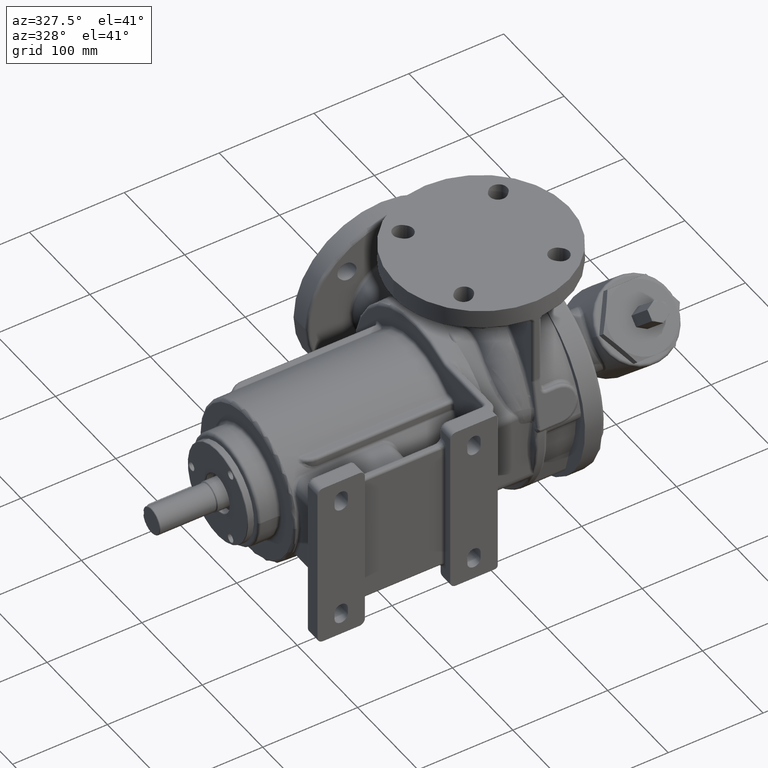
[diagram: clean part render]
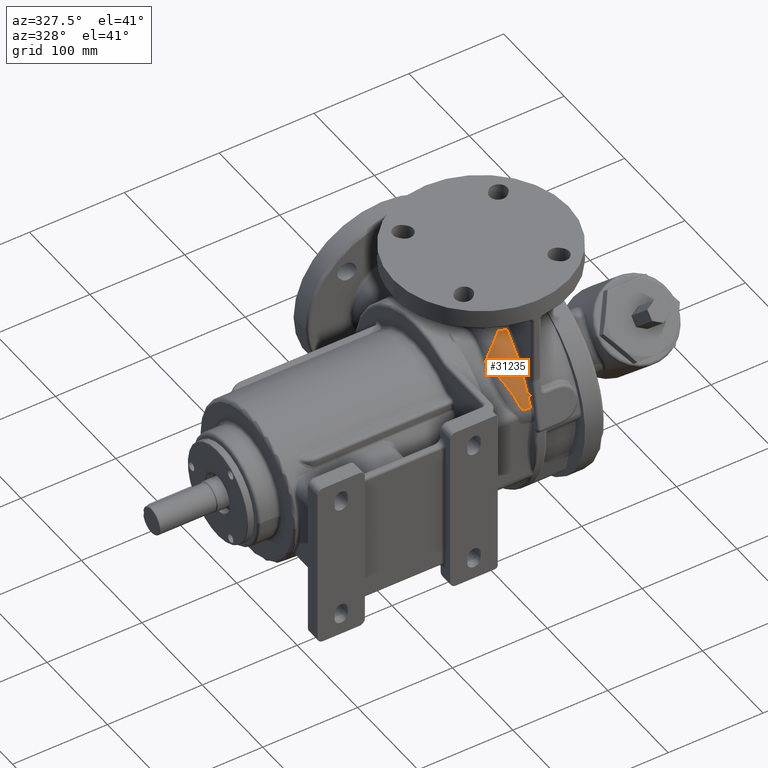
[diagram: same view with one face highlighted and labeled with its STEP entity id]
A machine part, auxiliary view. The second image highlights one B-rep face of the part: STEP entity #31235.
In plain terms, the highlighted face is a freeform B-spline surface patch.
Its self-contained STEP definition (entity closure, byte-faithful):
#1691=CARTESIAN_POINT('',(4.293292548500E1,-5.131202687040E1,1.062762327850E2));
#1710=CARTESIAN_POINT('',(4.293584864785E1,-5.131326947778E1,1.062767150827E2));
#1711=CARTESIAN_POINT('',(4.265334764745E1,-5.147098113219E1,1.059420361437E2));
#1712=CARTESIAN_POINT('',(4.209830815700E1,-5.177417433347E1,1.052735263032E2));
#1713=CARTESIAN_POINT('',(4.130125043184E1,-5.218888460608E1,1.042838449638E2));
#1714=CARTESIAN_POINT('',(4.053748695200E1,-5.256396625559E1,1.033085562268E2));
#1715=CARTESIAN_POINT('',(3.980649083556E1,-5.289914807970E1,1.023510302853E2));
#1716=CARTESIAN_POINT('',(3.910340774565E1,-5.319746910147E1,1.014073985292E2));
#1717=CARTESIAN_POINT('',(3.842146493199E1,-5.346291183774E1,1.004692260903E2));
#1718=CARTESIAN_POINT('',(3.775490336621E1,-5.369821526067E1,9.952911641829E1));
#1719=CARTESIAN_POINT('',(3.709752717071E1,-5.390606654258E1,9.857775390705E1));
#1720=CARTESIAN_POINT('',(3.644547851522E1,-5.408858760392E1,9.760819441014E1));
#1721=CARTESIAN_POINT('',(3.577751082332E1,-5.425187422139E1,9.658548683285E1));
#1722=CARTESIAN_POINT('',(3.509670995481E1,-5.439370140778E1,9.550842348258E1));
#1723=CARTESIAN_POINT('',(3.447729374535E1,-5.450256802560E1,9.449484175315E1));
#1724=CARTESIAN_POINT('',(3.395634247978E1,-5.458152306998E1,9.361762447144E1));
#1725=CARTESIAN_POINT('',(3.346106928519E1,-5.464696680354E1,9.276284276270E1));
#1726=CARTESIAN_POINT('',(3.297854738800E1,-5.470242054457E1,9.190940577215E1));
#1727=CARTESIAN_POINT('',(3.251828229401E1,-5.474875995830E1,9.107636134432E1));
#1728=CARTESIAN_POINT('',(3.209082748192E1,-5.478673273754E1,9.028635651036E1));
#1729=CARTESIAN_POINT('',(3.167976472270E1,-5.481940245401E1,8.951237269305E1));
#1730=CARTESIAN_POINT('',(3.124130807839E1,-5.485065132908E1,8.867129812352E1));
#1731=CARTESIAN_POINT('',(3.079607232476E1,-5.487822362639E1,8.780083256116E1));
#1732=CARTESIAN_POINT('',(3.035403377576E1,-5.490173550309E1,8.691998055513E1));
#1733=CARTESIAN_POINT('',(2.992923077381E1,-5.492020810294E1,8.605843420074E1));
#1734=CARTESIAN_POINT('',(2.944914239438E1,-5.493654673904E1,8.506731591764E1));
#1735=CARTESIAN_POINT('',(2.889915662193E1,-5.494637229555E1,8.390455532820E1));
#1736=CARTESIAN_POINT('',(2.842298064644E1,-5.494975457644E1,8.287143400391E1));
#1737=CARTESIAN_POINT('',(2.802466786323E1,-5.494641028780E1,8.199207320293E1));
#1738=CARTESIAN_POINT('',(2.764106626242E1,-5.493893108592E1,8.112935900887E1));
#1739=CARTESIAN_POINT('',(2.725915103673E1,-5.492820709430E1,8.025375230222E1));
#1740=CARTESIAN_POINT('',(2.703518307564E1,-5.491953178872E1,7.973173393294E1));
#1741=CARTESIAN_POINT('',(2.692778361622E1,-5.491478633395E1,7.947978383926E1));
#1996=CARTESIAN_POINT('',(5.014297936951E1,-5.439477356309E1,1.065914808099E2));
#1997=CARTESIAN_POINT('',(5.014536942951E1,-5.499913003788E1,1.059959265845E2));
#1998=CARTESIAN_POINT('',(5.014961733124E1,-5.616902286043E1,1.048234245139E2));
#1999=CARTESIAN_POINT('',(5.015420930526E1,-5.779067209591E1,1.031473951501E2));
#2000=CARTESIAN_POINT('',(5.015734806170E1,-5.934078859231E1,1.014980259647E2));
#2001=CARTESIAN_POINT('',(5.015902549330E1,-6.084550429948E1,9.985050912602E1));
#2002=CARTESIAN_POINT('',(5.015918609681E1,-6.233137236273E1,9.817677827120E1));
#2003=CARTESIAN_POINT('',(5.015774322452E1,-6.381383252809E1,9.645838093706E1));
#2004=CARTESIAN_POINT('',(5.015450111336E1,-6.531107889894E1,9.467135700253E1));
#2005=CARTESIAN_POINT('',(5.014917436575E1,-6.683419117227E1,9.279764748403E1));
#2006=CARTESIAN_POINT('',(5.014138715698E1,-6.839213155281E1,9.081963380543E1));
#2007=CARTESIAN_POINT('',(5.013066615122E1,-6.999054136046E1,8.872183322959E1));
#2008=CARTESIAN_POINT('',(5.011644304136E1,-7.163963036599E1,8.647997973035E1));
#2009=CARTESIAN_POINT('',(5.009838699897E1,-7.331915183645E1,8.410881198392E1));
#2010=CARTESIAN_POINT('',(5.007699686743E1,-7.496752773323E1,8.168807321592E1));
#2011=CARTESIAN_POINT('',(5.005277424281E1,-7.656251750067E1,7.925027832253E1));
#2012=CARTESIAN_POINT('',(5.002611127979E1,-7.810216103338E1,7.679959135680E1));
#2013=CARTESIAN_POINT('',(4.999747016199E1,-7.958750516090E1,7.433537578490E1));
#2014=CARTESIAN_POINT('',(4.996747082073E1,-8.101566701827E1,7.186343632502E1));
#2015=CARTESIAN_POINT('',(4.993659042496E1,-8.238726367358E1,6.938414838270E1));
#2016=CARTESIAN_POINT('',(4.990529860164E1,-8.370306938796E1,6.689744010290E1));
#2017=CARTESIAN_POINT('',(4.987397919745E1,-8.496416343984E1,6.440243334846E1));
#2018=CARTESIAN_POINT('',(4.984300782012E1,-8.617171413278E1,6.189806951004E1));
#2019=CARTESIAN_POINT('',(4.981270940812E1,-8.732718871844E1,5.938220841071E1));
#2020=CARTESIAN_POINT('',(4.978324797016E1,-8.843174820084E1,5.685317551957E1));
#2021=CARTESIAN_POINT('',(4.976424316259E1,-8.913547953720E1,5.515564852325E1));
#2022=CARTESIAN_POINT('',(4.975492343621E1,-8.947891766499E1,5.430472496942E1));
#2024=CARTESIAN_POINT('',(4.975492343621E1,-8.947891766499E1,5.430472496942E1));
#2025=CARTESIAN_POINT('',(4.974764779045E1,-8.974704661623E1,5.364039169490E1));
#2026=CARTESIAN_POINT('',(4.974403390356E1,-9.029185994366E1,5.226508906669E1));
#2027=CARTESIAN_POINT('',(4.977149700427E1,-9.112894080706E1,5.005711747002E1));
#2028=CARTESIAN_POINT('',(4.982987028601E1,-9.197528877219E1,4.771076517476E1));
#2029=CARTESIAN_POINT('',(4.991500552199E1,-9.282098959558E1,4.523061792906E1));
#2030=CARTESIAN_POINT('',(4.998403795693E1,-9.336946163658E1,4.351907268815E1));
#2031=CARTESIAN_POINT('',(5.002028772292E1,-9.363991190880E1,4.264601526965E1));
#2033=CARTESIAN_POINT('',(5.002028772292E1,-9.363991190880E1,4.264601526965E1));
#2034=CARTESIAN_POINT('',(4.954002716655E1,-9.360738319168E1,4.267987549824E1));
#2035=CARTESIAN_POINT('',(4.863204915287E1,-9.353795132649E1,4.275131039376E1));
#2036=CARTESIAN_POINT('',(4.745401574150E1,-9.342825739079E1,4.286294828201E1));
#2037=CARTESIAN_POINT('',(4.639581079067E1,-9.331181124465E1,4.298218015426E1));
#2038=CARTESIAN_POINT('',(4.542608609738E1,-9.318878883250E1,4.310718161843E1));
#2039=CARTESIAN_POINT('',(4.449611579623E1,-9.305402468503E1,4.324304094428E1));
#2040=CARTESIAN_POINT('',(4.358692142200E1,-9.290524854556E1,4.338859137101E1));
#2041=CARTESIAN_POINT('',(4.270787288765E1,-9.274391566639E1,4.354186186037E1));
#2042=CARTESIAN_POINT('',(4.208377567473E1,-9.261608279292E1,4.365841065107E1));
#2043=CARTESIAN_POINT('',(4.176735156379E1,-9.254725022867E1,4.371961713606E1));
#2045=CARTESIAN_POINT('',(4.176738205831E1,-9.254723066053E1,4.371967562597E1));
#2046=CARTESIAN_POINT('',(4.165285432263E1,-9.235019694568E1,4.421289253192E1));
#2047=CARTESIAN_POINT('',(4.141829144407E1,-9.195006293802E1,4.518581304274E1));
#2048=CARTESIAN_POINT('',(4.105463102197E1,-9.133188015703E1,4.660626474006E1));
#2049=CARTESIAN_POINT('',(4.067949257847E1,-9.069731223968E1,4.798432009604E1));
#2050=CARTESIAN_POINT('',(4.029593498996E1,-9.004898879488E1,4.931624787638E1));
#2051=CARTESIAN_POINT('',(3.990326529600E1,-8.938370961911E1,5.061048269920E1));
#2052=CARTESIAN_POINT('',(3.949774209434E1,-8.869359836980E1,5.188194126425E1));
#2053=CARTESIAN_POINT('',(3.907871436793E1,-8.797464031350E1,5.313633438239E1));
#2054=CARTESIAN_POINT('',(3.864851586361E1,-8.722482709954E1,5.437620147625E1));
#2055=CARTESIAN_POINT('',(3.821110185301E1,-8.644975350259E1,5.559060024129E1));
#2056=CARTESIAN_POINT('',(3.777008074330E1,-8.565265127452E1,5.677506754578E1));
#2057=CARTESIAN_POINT('',(3.732731823921E1,-8.483623116375E1,5.792611255206E1));
#2058=CARTESIAN_POINT('',(3.688112119754E1,-8.399441302381E1,5.905340798693E1));
#2059=CARTESIAN_POINT('',(3.642825826840E1,-8.312077909631E1,6.016391665557E1));
#2060=CARTESIAN_POINT('',(3.596889875803E1,-8.220955209866E1,6.126457120652E1));
#2061=CARTESIAN_POINT('',(3.550729551325E1,-8.126418299633E1,6.235045255653E1));
#2062=CARTESIAN_POINT('',(3.504810791430E1,-8.029347624475E1,6.341066354325E1));
#2063=CARTESIAN_POINT('',(3.459242273843E1,-7.929783433060E1,6.444555681489E1));
#2064=CARTESIAN_POINT('',(3.414053586274E1,-7.827783526059E1,6.545430102354E1));
#2065=CARTESIAN_POINT('',(3.369407654764E1,-7.723560828309E1,6.643566257413E1));
#2066=CARTESIAN_POINT('',(3.324899230124E1,-7.616291489409E1,6.739638380542E1));
#2067=CARTESIAN_POINT('',(3.280466127214E1,-7.505285529047E1,6.834291797939E1));
#2068=CARTESIAN_POINT('',(3.236567645652E1,-7.391364846942E1,6.926800663736E1));
#2069=CARTESIAN_POINT('',(3.193335835288E1,-7.274875180425E1,7.016835944304E1));
#2070=CARTESIAN_POINT('',(3.150832281044E1,-7.156021750642E1,7.104194013546E1));
#2071=CARTESIAN_POINT('',(3.109268033711E1,-7.035267953821E1,7.188611287641E1));
#2072=CARTESIAN_POINT('',(3.068723633675E1,-6.912954074383E1,7.269863085138E1));
#2073=CARTESIAN_POINT('',(3.029255636157E1,-6.789476257412E1,7.347692464928E1));
#2074=CARTESIAN_POINT('',(2.990597238643E1,-6.664118951960E1,7.422567240166E1));
#2075=CARTESIAN_POINT('',(2.952625856171E1,-6.536179225841E1,7.494948355151E1));
#2076=CARTESIAN_POINT('',(2.915753629962E1,-6.406978011531E1,7.564076941580E1));
#2077=CARTESIAN_POINT('',(2.880103228678E1,-6.277129971798E1,7.629638855260E1));
#2078=CARTESIAN_POINT('',(2.845725606376E1,-6.146875149085E1,7.691613387047E1));
#2079=CARTESIAN_POINT('',(2.812589433636E1,-6.016345357823E1,7.749935193672E1));
#2080=CARTESIAN_POINT('',(2.780735436383E1,-5.885624787204E1,7.804711019921E1));
#2081=CARTESIAN_POINT('',(2.750113905804E1,-5.754675130763E1,7.855962544025E1));
#2082=CARTESIAN_POINT('',(2.720709009435E1,-5.623388327786E1,7.903796427217E1));
#2083=CARTESIAN_POINT('',(2.701922569405E1,-5.535468900610E1,7.933566390491E1));
#2084=CARTESIAN_POINT('',(2.692718378276E1,-5.491429655765E1,7.947863947783E1));
#2126=CARTESIAN_POINT('',(5.014297936951E1,-5.439477356309E1,1.065914808099E2));
#2128=CARTESIAN_POINT('',(5.014297936951E1,-5.439477356309E1,1.065914808099E2));
#2129=CARTESIAN_POINT('',(4.987611424810E1,-5.432069114659E1,1.065823166292E2));
#2130=CARTESIAN_POINT('',(4.934197120078E1,-5.416396654759E1,1.065631581037E2));
#2131=CARTESIAN_POINT('',(4.854102327382E1,-5.390329192681E1,1.065322320993E2));
#2132=CARTESIAN_POINT('',(4.773990825007E1,-5.361644505501E1,1.064993333706E2));
#2133=CARTESIAN_POINT('',(4.693869147725E1,-5.330295420542E1,1.064647178421E2));
#2134=CARTESIAN_POINT('',(4.613699432143E1,-5.296216024537E1,1.064286281643E2));
#2135=CARTESIAN_POINT('',(4.533427927769E1,-5.259317526487E1,1.063913342473E2));
#2136=CARTESIAN_POINT('',(4.453152056637E1,-5.219580854515E1,1.063531755918E2));
#2137=CARTESIAN_POINT('',(4.372973816938E1,-5.176994851724E1,1.063144848157E2));
#2138=CARTESIAN_POINT('',(4.319978320407E1,-5.146857214493E1,1.062891602747E2));
#2139=CARTESIAN_POINT('',(4.293429833491E1,-5.131268494733E1,1.062764213491E2));
#21914=VERTEX_POINT('',#2045);
#21915=VERTEX_POINT('',#2084);
#21934=VERTEX_POINT('',#1691);
#22384=VERTEX_POINT('',#2126);
#22386=VERTEX_POINT('',#2022);
#22388=VERTEX_POINT('',#2031);
#30524=CARTESIAN_POINT('',(5.032467698120E1,-5.285959639517E1,
1.081394329860E2));
#30525=CARTESIAN_POINT('',(5.042803484662E1,-5.350821192417E1,
1.075476811669E2));
#30526=CARTESIAN_POINT('',(5.061049036226E1,-5.465541486808E1,
1.064823137069E2));
#30527=CARTESIAN_POINT('',(5.086920719639E1,-5.629754632465E1,
1.049069563803E2));
#30528=CARTESIAN_POINT('',(5.110154749289E1,-5.779038963970E1,
1.034329015496E2));
#30529=CARTESIAN_POINT('',(5.132987070603E1,-5.928105324124E1,
1.019170201828E2));
#30530=CARTESIAN_POINT('',(5.155361722651E1,-6.077008963569E1,
1.003565940931E2));
#30531=CARTESIAN_POINT('',(5.173585568706E1,-6.200965804470E1,
9.901713100299E1));
#30532=CARTESIAN_POINT('',(5.187885043308E1,-6.300024557450E1,
9.792119906647E1));
#30533=CARTESIAN_POINT('',(5.198463697844E1,-6.374250879785E1,
9.708691806321E1));
#30534=CARTESIAN_POINT('',(5.208890486251E1,-6.448392649105E1,
9.624018003772E1));
#30535=CARTESIAN_POINT('',(5.219157539951E1,-6.522427872458E1,
9.538091950204E1));
#30536=CARTESIAN_POINT('',(5.229258572167E1,-6.596328801005E1,
9.450914151390E1));
#30537=CARTESIAN_POINT('',(5.239187187479E1,-6.670065625584E1,
9.362488093897E1));
#30538=CARTESIAN_POINT('',(5.248936111424E1,-6.743606703471E1,
9.272820125815E1));
#30539=CARTESIAN_POINT('',(5.261687019966E1,-6.841355895514E1,
9.151619553048E1));
#30540=CARTESIAN_POINT('',(5.277148657115E1,-6.962883155473E1,
8.997066501981E1));
#30541=CARTESIAN_POINT('',(5.294899220044E1,-7.107384080015E1,
8.806826743171E1));
#30542=CARTESIAN_POINT('',(5.311805180010E1,-7.250280503641E1,
8.611932282322E1));
#30543=CARTESIAN_POINT('',(5.327827074670E1,-7.391310853946E1,
8.412511681144E1));
#30544=CARTESIAN_POINT('',(5.342925160035E1,-7.530225120988E1,
8.208700536706E1));
#30545=CARTESIAN_POINT('',(5.361773533621E1,-7.712306319473E1,
7.931291070603E1));
#30546=CARTESIAN_POINT('',(5.382841951025E1,-7.933452879306E1,
7.574293098830E1));
#30547=CARTESIAN_POINT('',(5.404015846738E1,-8.186837616154E1,
7.130856631113E1));
#30548=CARTESIAN_POINT('',(5.421170639692E1,-8.426785593547E1,
6.673847776587E1));
#30549=CARTESIAN_POINT('',(5.432392735745E1,-8.614510138445E1,
6.282996958381E1));
#30550=CARTESIAN_POINT('',(5.439799227420E1,-8.756831965945E1,
5.965125139839E1));
#30551=CARTESIAN_POINT('',(5.444651407828E1,-8.859534752338E1,
5.724333508566E1));
#30552=CARTESIAN_POINT('',(5.448887539625E1,-8.958097517333E1,
5.481362937946E1));
#30553=CARTESIAN_POINT('',(5.452598196022E1,-9.052430401828E1,
5.236425471060E1));
#30554=CARTESIAN_POINT('',(5.455873822480E1,-9.142454230369E1,
4.989735399879E1));
#30555=CARTESIAN_POINT('',(5.458801055501E1,-9.228101056263E1,
4.741506561783E1));
#30556=CARTESIAN_POINT('',(5.461636432286E1,-9.314741680884E1,
4.475271296471E1));
#30557=CARTESIAN_POINT('',(5.463424079966E1,-9.370693179408E1,
4.291327092183E1));
#30558=CARTESIAN_POINT('',(5.464367370879E1,-9.400130452989E1,
4.190770141834E1));
#30559=CARTESIAN_POINT('',(4.931869276232E1,-5.267999284925E1,
1.080170245936E2));
#30560=CARTESIAN_POINT('',(4.943579747568E1,-5.333280230859E1,
1.074284658350E2));
#30561=CARTESIAN_POINT('',(4.964251703085E1,-5.448780385393E1,
1.063683980529E2));
#30562=CARTESIAN_POINT('',(4.993574451229E1,-5.614170294914E1,
1.047998744403E2));
#30563=CARTESIAN_POINT('',(5.019921543478E1,-5.764549347598E1,
1.033315459721E2));
#30564=CARTESIAN_POINT('',(5.045829404740E1,-5.914709577780E1,
1.018210470111E2));
#30565=CARTESIAN_POINT('',(5.071240651413E1,-6.064681554380E1,
1.002658499214E2));
#30566=CARTESIAN_POINT('',(5.091960096156E1,-6.189487141569E1,
9.893079198072E1));
#30567=CARTESIAN_POINT('',(5.108225824560E1,-6.289189005764E1,
9.783851509655E1));
#30568=CARTESIAN_POINT('',(5.120262435726E1,-6.363878519786E1,
9.700705032936E1));
#30569=CARTESIAN_POINT('',(5.132130645989E1,-6.438466605035E1,
9.616317126796E1));
#30570=CARTESIAN_POINT('',(5.143819093128E1,-6.512932636579E1,
9.530679053453E1));
#30571=CARTESIAN_POINT('',(5.155321946445E1,-6.587246278238E1,
9.443793916962E1));
#30572=CARTESIAN_POINT('',(5.166632498070E1,-6.661378492606E1,
9.355664009407E1));
#30573=CARTESIAN_POINT('',(5.177740114135E1,-6.735300547334E1,
9.266291856929E1));
#30574=CARTESIAN_POINT('',(5.192269696074E1,-6.833541784600E1,
9.145480707063E1));
#30575=CARTESIAN_POINT('',(5.209892148662E1,-6.955658729529E1,
8.991398537343E1));
#30576=CARTESIAN_POINT('',(5.230129987987E1,-7.100832309671E1,
8.801687954186E1));
#30577=CARTESIAN_POINT('',(5.249411465029E1,-7.244365472867E1,
8.607284673047E1));
#30578=CARTESIAN_POINT('',(5.267692153701E1,-7.385994587629E1,
8.408317151025E1));
#30579=CARTESIAN_POINT('',(5.284927499442E1,-7.525467206560E1,
8.204922072726E1));
#30580=CARTESIAN_POINT('',(5.306457051907E1,-7.708235832097E1,
7.928020921546E1));
#30581=CARTESIAN_POINT('',(5.330550069560E1,-7.930129412174E1,
7.571578458600E1));
#30582=CARTESIAN_POINT('',(5.354807940937E1,-8.184226878827E1,
7.128709233965E1));
#30583=CARTESIAN_POINT('',(5.374498468671E1,-8.424717013158E1,
6.672198010829E1));
#30584=CARTESIAN_POINT('',(5.387406266710E1,-8.612772881150E1,
6.281725885027E1));
#30585=CARTESIAN_POINT('',(5.395933861200E1,-8.755304574846E1,
5.964144658520E1));
#30586=CARTESIAN_POINT('',(5.401521775714E1,-8.858141958189E1,
5.723565699697E1));
#30587=CARTESIAN_POINT('',(5.406399548701E1,-8.956821183066E1,
5.480802883512E1));
#30588=CARTESIAN_POINT('',(5.410669222217E1,-9.051256705258E1,
5.236068463382E1));
#30589=CARTESIAN_POINT('',(5.414429624855E1,-9.141373559170E1,
4.989576269531E1));
#30590=CARTESIAN_POINT('',(5.417774904616E1,-9.227108151479E1,
4.741537599163E1));
#30591=CARTESIAN_POINT('',(5.420995891176E1,-9.313840959028E1,
4.475492687909E1));
#30592=CARTESIAN_POINT('',(5.423010080562E1,-9.369857161065E1,
4.291666638673E1));
#30593=CARTESIAN_POINT('',(5.424066536815E1,-9.399330860128E1,
4.191168895632E1));
#30594=CARTESIAN_POINT('',(4.722279139259E1,-5.223229463697E1,
1.076993530694E2));
#30595=CARTESIAN_POINT('',(4.736791479762E1,-5.289523371923E1,
1.071189037703E2));
#30596=CARTESIAN_POINT('',(4.762411270747E1,-5.406901029022E1,
1.060724321975E2));
#30597=CARTESIAN_POINT('',(4.798764916533E1,-5.575110752087E1,
1.045218325797E2));
#30598=CARTESIAN_POINT('',(4.831451356923E1,-5.728105539543E1,
1.030688503185E2));
#30599=CARTESIAN_POINT('',(4.863634978219E1,-5.880878536810E1,
1.015730414010E2));
#30600=CARTESIAN_POINT('',(4.895241061983E1,-6.033411020160E1,
1.000322277310E2));
#30601=CARTESIAN_POINT('',(4.921035501733E1,-6.160272657302E1,
9.870913659003E1));
#30602=CARTESIAN_POINT('',(4.941309320055E1,-6.261562136620E1,
9.762645655849E1));
#30603=CARTESIAN_POINT('',(4.956323492039E1,-6.337411602579E1,
9.680220423792E1));
#30604=CARTESIAN_POINT('',(4.971134750610E1,-6.413121611619E1,
9.596561996379E1));
#30605=CARTESIAN_POINT('',(4.985734220134E1,-6.488668890117E1,
9.511663343424E1));
#30606=CARTESIAN_POINT('',(5.000110416957E1,-6.564031199286E1,
9.425516573195E1));
#30607=CARTESIAN_POINT('',(5.014252738952E1,-6.639181945127E1,
9.338119432895E1));
#30608=CARTESIAN_POINT('',(5.028153387956E1,-6.714091421576E1,
9.249474237912E1));
#30609=CARTESIAN_POINT('',(5.046353779164E1,-6.813607851770E1,
9.129622965536E1));
#30610=CARTESIAN_POINT('',(5.068454766870E1,-6.937244199604E1,
8.976716192661E1));
#30611=CARTESIAN_POINT('',(5.093866542339E1,-7.084132881448E1,
8.788353030623E1));
#30612=CARTESIAN_POINT('',(5.118105264820E1,-7.229281756056E1,
8.595214522529E1));
#30613=CARTESIAN_POINT('',(5.141109992768E1,-7.372429242379E1,
8.397418992856E1));
#30614=CARTESIAN_POINT('',(5.162822448618E1,-7.513320015340E1,
8.195101015452E1));
#30615=CARTESIAN_POINT('',(5.189979450873E1,-7.697839109265E1,
7.919514472978E1));
#30616=CARTESIAN_POINT('',(5.220444302016E1,-7.921643602642E1,
7.564505531749E1));
#30617=CARTESIAN_POINT('',(5.251224527969E1,-8.177586048621E1,
7.123076659200E1));
#30618=CARTESIAN_POINT('',(5.276317470434E1,-8.419496234416E1,
6.667806796493E1));
#30619=CARTESIAN_POINT('',(5.292834532452E1,-8.608430383305E1,
6.278265396624E1));
#30620=CARTESIAN_POINT('',(5.303766532975E1,-8.751522913200E1,
5.961391138173E1));
#30621=CARTESIAN_POINT('',(5.310935104548E1,-8.854720664521E1,
5.721328403442E1));
#30622=CARTESIAN_POINT('',(5.317187510499E1,-8.953710802086E1,
5.479071651346E1));
#30623=CARTESIAN_POINT('',(5.322642070748E1,-9.048419168883E1,
5.234833154300E1));
#30624=CARTESIAN_POINT('',(5.327415616153E1,-9.138781581998E1,
4.988823786009E1));
#30625=CARTESIAN_POINT('',(5.331620533455E1,-9.224743804459E1,
4.741251678743E1));
#30626=CARTESIAN_POINT('',(5.335611279298E1,-9.311709848806E1,
4.475681595470E1));
#30627=CARTESIAN_POINT('',(5.338052478038E1,-9.367886209170E1,
4.292155218700E1));
#30628=CARTESIAN_POINT('',(5.339314109458E1,-9.397449272330E1,
4.191808022333E1));
#30629=CARTESIAN_POINT('',(4.412993635970E1,-5.134253039510E1,
1.070383843667E2));
#30630=CARTESIAN_POINT('',(4.431480013264E1,-5.202487290162E1,
1.064737232112E2));
#30631=CARTESIAN_POINT('',(4.464082086675E1,-5.323418526573E1,
1.054540355544E2));
#30632=CARTESIAN_POINT('',(4.510300421656E1,-5.496892252280E1,
1.039395645349E2));
#30633=CARTESIAN_POINT('',(4.551845413472E1,-5.654737041247E1,
1.025181380121E2));
#30634=CARTESIAN_POINT('',(4.592756530145E1,-5.812349632745E1,
1.010529965721E2));
#30635=CARTESIAN_POINT('',(4.632961402660E1,-5.969656363010E1,
9.954234182421E1));
#30636=CARTESIAN_POINT('',(4.665815282237E1,-6.100403702761E1,
9.824418909033E1));
#30637=CARTESIAN_POINT('',(4.691666845951E1,-6.204726740009E1,
9.718143020228E1));
#30638=CARTESIAN_POINT('',(4.710828802710E1,-6.282810480348E1,
9.637210689293E1));
#30639=CARTESIAN_POINT('',(4.729753088882E1,-6.360713374107E1,
9.555040645777E1));
#30640=CARTESIAN_POINT('',(4.748427446834E1,-6.438410421872E1,
9.471623705654E1));
#30641=CARTESIAN_POINT('',(4.766840444974E1,-6.515873620482E1,
9.386954844500E1));
#30642=CARTESIAN_POINT('',(4.784980827385E1,-6.593074281280E1,
9.301030838191E1));
#30643=CARTESIAN_POINT('',(4.802836654704E1,-6.669983150175E1,
9.213849880831E1));
#30644=CARTESIAN_POINT('',(4.826249331066E1,-6.772098804582E1,
9.095933080816E1));
#30645=CARTESIAN_POINT('',(4.854745228517E1,-6.898860319903E1,
8.945399927566E1));
#30646=CARTESIAN_POINT('',(4.887612296021E1,-7.049301925626E1,
8.759781057174E1));
#30647=CARTESIAN_POINT('',(4.919053982333E1,-7.197804559318E1,
8.569253629555E1));
#30648=CARTESIAN_POINT('',(4.948975006935E1,-7.344102177717E1,
8.373913480776E1));
#30649=CARTESIAN_POINT('',(4.977285029294E1,-7.487933560214E1,
8.173880776880E1));
#30650=CARTESIAN_POINT('',(5.012777657579E1,-7.676086604145E1,
7.901106859375E1));
#30651=CARTESIAN_POINT('',(5.052738898047E1,-7.903881898175E1,
7.549175559452E1));
#30652=CARTESIAN_POINT('',(5.093320830630E1,-8.163715255327E1,
7.110830534159E1));
#30653=CARTESIAN_POINT('',(5.126594196026E1,-8.408669361058E1,
6.658177429066E1));
#30654=CARTESIAN_POINT('',(5.148620252255E1,-8.599523851622E1,
6.270549984251E1));
#30655=CARTESIAN_POINT('',(5.163230726680E1,-8.743855860589E1,
5.955107572617E1));
#30656=CARTESIAN_POINT('',(5.172811918797E1,-8.847855475722E1,
5.716078949511E1));
#30657=CARTESIAN_POINT('',(5.181150394698E1,-8.947540288281E1,
5.474823468042E1));
#30658=CARTESIAN_POINT('',(5.188386370257E1,-9.042856534384E1,
5.231556406536E1));
#30659=CARTESIAN_POINT('',(5.194660201931E1,-9.133759866431E1,
4.986487409467E1));
#30660=CARTESIAN_POINT('',(5.200109180318E1,-9.220214883688E1,
4.739818404480E1));
#30661=CARTESIAN_POINT('',(5.205181907381E1,-9.307673768555E1,
4.475159705237E1));
#30662=CARTESIAN_POINT('',(5.208206673618E1,-9.364176721235E1,
4.292205909009E1));
#30663=CARTESIAN_POINT('',(5.209750274518E1,-9.393918103146E1,
4.192148235824E1));
#30664=CARTESIAN_POINT('',(4.106016098636E1,-5.021333331452E1,
1.061796527919E2));
#30665=CARTESIAN_POINT('',(4.128211267797E1,-5.091997146166E1,
1.056333472146E2));
#30666=CARTESIAN_POINT('',(4.167322326205E1,-5.217312249992E1,
1.046450896739E2));
#30667=CARTESIAN_POINT('',(4.222743214719E1,-5.397169969555E1,
1.031740799374E2));
#30668=CARTESIAN_POINT('',(4.272561582217E1,-5.560847264892E1,
1.017914746863E2));
#30669=CARTESIAN_POINT('',(4.321634312426E1,-5.724262985261E1,
1.003647999328E2));
#30670=CARTESIAN_POINT('',(4.369882622587E1,-5.887303638447E1,
9.889254629238E1));
#30671=CARTESIAN_POINT('',(4.409337295084E1,-6.022744660255E1,
9.762647444801E1));
#30672=CARTESIAN_POINT('',(4.440409613678E1,-6.130759725946E1,
9.658943539953E1));
#30673=CARTESIAN_POINT('',(4.463457537796E1,-6.211578405261E1,
9.579941960379E1));
#30674=CARTESIAN_POINT('',(4.486237992803E1,-6.292178937247E1,
9.499703770379E1));
#30675=CARTESIAN_POINT('',(4.508739350667E1,-6.372533571470E1,
9.418218075865E1));
#30676=CARTESIAN_POINT('',(4.530949061373E1,-6.452612625313E1,
9.335476292649E1));
#30677=CARTESIAN_POINT('',(4.552853862636E1,-6.532385237265E1,
9.251471523249E1));
#30678=CARTESIAN_POINT('',(4.574439935440E1,-6.611819814069E1,
9.166198053711E1));
#30679=CARTESIAN_POINT('',(4.602776880265E1,-6.717238602705E1,
9.050802937300E1));
#30680=CARTESIAN_POINT('',(4.637326698595E1,-6.848003462797E1,
8.903368823050E1));
#30681=CARTESIAN_POINT('',(4.677265131495E1,-7.003033239425E1,
8.721343195851E1));
#30682=CARTESIAN_POINT('',(4.715552086277E1,-7.155893002766E1,
8.534246534896E1));
#30683=CARTESIAN_POINT('',(4.752060211585E1,-7.306301250044E1,
8.342146183548E1));
#30684=CARTESIAN_POINT('',(4.786669040119E1,-7.453982257544E1,
8.145143189972E1));
#30685=CARTESIAN_POINT('',(4.830140980285E1,-7.646904642138E1,
7.876116900387E1));
#30686=CARTESIAN_POINT('',(4.879233884865E1,-7.879956828404E1,
7.528319190177E1));
#30687=CARTESIAN_POINT('',(4.929320751676E1,-8.144958394794E1,
7.094140167050E1));
#30688=CARTESIAN_POINT('',(4.970625142648E1,-8.394007948091E1,
6.645018606291E1));
#30689=CARTESIAN_POINT('',(4.998150416722E1,-8.587492501634E1,
6.259947884603E1));
#30690=CARTESIAN_POINT('',(5.016486235822E1,-8.733546701361E1,
5.946388825607E1));
#30691=CARTESIAN_POINT('',(5.028537468757E1,-8.838670894827E1,
5.708704169489E1));
#30692=CARTESIAN_POINT('',(5.039037784852E1,-8.939337386605E1,
5.468733836774E1));
#30693=CARTESIAN_POINT('',(5.048146232990E1,-9.035516875278E1,
5.226697513695E1));
#30694=CARTESIAN_POINT('',(5.056023663656E1,-9.127188406502E1,
4.982804492640E1));
#30695=CARTESIAN_POINT('',(5.062831417105E1,-9.214338280662E1,
4.737253350476E1));
#30696=CARTESIAN_POINT('',(5.069125941033E1,-9.302482259996E1,
4.473717303081E1));
#30697=CARTESIAN_POINT('',(5.072849105892E1,-9.359429416538E1,
4.291470898432E1));
#30698=CARTESIAN_POINT('',(5.074743482208E1,-9.389409896381E1,
4.191774502037E1));
#30699=CARTESIAN_POINT('',(3.859796107371E1,-4.910734895569E1,
1.053104339428E2));
#30700=CARTESIAN_POINT('',(3.884751253578E1,-4.983665209162E1,
1.047804285417E2));
#30701=CARTESIAN_POINT('',(3.928806843314E1,-5.113056688818E1,
1.038213555594E2));
#30702=CARTESIAN_POINT('',(3.991381519291E1,-5.298869178298E1,
1.023929157497E2));
#30703=CARTESIAN_POINT('',(4.047707180262E1,-5.468014069564E1,
1.010495257140E2));
#30704=CARTESIAN_POINT('',(4.103230361602E1,-5.636900629982E1,
9.966241406119E1));
#30705=CARTESIAN_POINT('',(4.157833564063E1,-5.805376277127E1,
9.822999658968E1));
#30706=CARTESIAN_POINT('',(4.202481071522E1,-5.945288384008E1,
9.699728267219E1));
#30707=CARTESIAN_POINT('',(4.237637573196E1,-6.056832030762E1,
9.598697117497E1));
#30708=CARTESIAN_POINT('',(4.263712756674E1,-6.140270469278E1,
9.521700149169E1));
#30709=CARTESIAN_POINT('',(4.289484164619E1,-6.223462048640E1,
9.443463892069E1));
#30710=CARTESIAN_POINT('',(4.314939641948E1,-6.306377163847E1,
9.363974050073E1));
#30711=CARTESIAN_POINT('',(4.340065762237E1,-6.388984070987E1,
9.283217845280E1));
#30712=CARTESIAN_POINT('',(4.364847652791E1,-6.471249665503E1,
9.201183491621E1));
#30713=CARTESIAN_POINT('',(4.389269254688E1,-6.553139857625E1,
9.117860116679E1));
#30714=CARTESIAN_POINT('',(4.421328392570E1,-6.661779336080E1,
9.005031250075E1));
#30715=CARTESIAN_POINT('',(4.460415542097E1,-6.796462595984E1,
8.860729168096E1));
#30716=CARTESIAN_POINT('',(4.505597022437E1,-6.955999102092E1,
8.682306432939E1));
#30717=CARTESIAN_POINT('',(4.548910272440E1,-7.113147580089E1,
8.498631062856E1));
#30718=CARTESIAN_POINT('',(4.590216356532E1,-7.267607074245E1,
8.309752614495E1));
#30719=CARTESIAN_POINT('',(4.629386541974E1,-7.419086432123E1,
8.115762090452E1));
#30720=CARTESIAN_POINT('',(4.678618381111E1,-7.616721943418E1,
7.850470218341E1));
#30721=CARTESIAN_POINT('',(4.734300193246E1,-7.854988498332E1,
7.506819097885E1));
#30722=CARTESIAN_POINT('',(4.791328917222E1,-8.125168484042E1,
7.076874194827E1));
#30723=CARTESIAN_POINT('',(4.838656725678E1,-8.378394508573E1,
6.631377887662E1));
#30724=CARTESIAN_POINT('',(4.870474902883E1,-8.574626651413E1,
6.248932460131E1));
#30725=CARTESIAN_POINT('',(4.891835872723E1,-8.722516288150E1,
5.937291568508E1));
#30726=CARTESIAN_POINT('',(4.905958179775E1,-8.828856636701E1,
5.700963777172E1));
#30727=CARTESIAN_POINT('',(4.918334827693E1,-8.930599088730E1,
5.462275480059E1));
#30728=CARTESIAN_POINT('',(4.929128377527E1,-9.027734008505E1,
5.221452043406E1));
#30729=CARTESIAN_POINT('',(4.938511792654E1,-9.120260558852E1,
4.978706564764E1));
#30730=CARTESIAN_POINT('',(4.946661997580E1,-9.208185212076E1,
4.734236214420E1));
#30731=CARTESIAN_POINT('',(4.954223091120E1,-9.297089187935E1,
4.471777083835E1));
#30732=CARTESIAN_POINT('',(4.958701496926E1,-9.354521164852E1,
4.290211248167E1));
#30733=CARTESIAN_POINT('',(4.960982406214E1,-9.384759475075E1,
4.190867243830E1));
#30734=CARTESIAN_POINT('',(3.666529954037E1,-4.811353561526E1,
1.044875955360E2));
#30735=CARTESIAN_POINT('',(3.693802331824E1,-4.886234174174E1,
1.039752065781E2));
#30736=CARTESIAN_POINT('',(3.742007048495E1,-5.019189528716E1,
1.030477595682E2));
#30737=CARTESIAN_POINT('',(3.810536513777E1,-5.210299296684E1,
1.016649420927E2));
#30738=CARTESIAN_POINT('',(3.872230994252E1,-5.384354502496E1,
1.003629467166E2));
#30739=CARTESIAN_POINT('',(3.933022605435E1,-5.558180364727E1,
9.901683208148E1));
#30740=CARTESIAN_POINT('',(3.992756725674E1,-5.731573071269E1,
9.762485676335E1));
#30741=CARTESIAN_POINT('',(4.041540648055E1,-5.875527891807E1,
9.642528445507E1));
#30742=CARTESIAN_POINT('',(4.079912375146E1,-5.990255705795E1,
9.544109991135E1));
#30743=CARTESIAN_POINT('',(4.108350343935E1,-6.076054084350E1,
9.469051741425E1));
#30744=CARTESIAN_POINT('',(4.136434281029E1,-6.161574694620E1,
9.392731276450E1));
#30745=CARTESIAN_POINT('',(4.164150961160E1,-6.246785958660E1,
9.315131553437E1));
#30746=CARTESIAN_POINT('',(4.191486352470E1,-6.331654868059E1,
9.236236212717E1));
#30747=CARTESIAN_POINT('',(4.218424619405E1,-6.416146564972E1,
9.156029588296E1));
#30748=CARTESIAN_POINT('',(4.244948797083E1,-6.500224655757E1,
9.074497407579E1));
#30749=CARTESIAN_POINT('',(4.279738838734E1,-6.611727109630E1,
8.964004274952E1));
#30750=CARTESIAN_POINT('',(4.322102638093E1,-6.749880950898E1,
8.822517337503E1));
#30751=CARTESIAN_POINT('',(4.370997489249E1,-6.913390179981E1,
8.647291477952E1));
#30752=CARTESIAN_POINT('',(4.417810011603E1,-7.074303104290E1,
8.466624712275E1));
#30753=CARTESIAN_POINT('',(4.462408925621E1,-7.232306569663E1,
8.280565136478E1));
#30754=CARTESIAN_POINT('',(4.504675914041E1,-7.387101572592E1,
8.089206692138E1));
#30755=CARTESIAN_POINT('',(4.557792072799E1,-7.588848797638E1,
7.827184145255E1));
#30756=CARTESIAN_POINT('',(4.617905177762E1,-7.831673928460E1,
7.487192459139E1));
#30757=CARTESIAN_POINT('',(4.679684045520E1,-8.106432742349E1,
7.061047322781E1));
#30758=CARTESIAN_POINT('',(4.731284556606E1,-8.363423858623E1,
6.618856166022E1));
#30759=CARTESIAN_POINT('',(4.766325833652E1,-8.562201630301E1,
6.238826652143E1));
#30760=CARTESIAN_POINT('',(4.790071860010E1,-8.711829873079E1,
5.928946908919E1));
#30761=CARTESIAN_POINT('',(4.805883458940E1,-8.819339525173E1,
5.693860331113E1));
#30762=CARTESIAN_POINT('',(4.819854091971E1,-8.922131883124E1,
5.456339499992E1));
#30763=CARTESIAN_POINT('',(4.832149597808E1,-9.020212787288E1,
5.216612412253E1));
#30764=CARTESIAN_POINT('',(4.842932250398E1,-9.113594980891E1,
4.974892459750E1));
#30765=CARTESIAN_POINT('',(4.852366806062E1,-9.202297415701E1,
4.731378755381E1));
#30766=CARTESIAN_POINT('',(4.861184784999E1,-9.291963009420E1,
4.469869191032E1));
#30767=CARTESIAN_POINT('',(4.866451597422E1,-9.349878496068E1,
4.288901446461E1));
#30768=CARTESIAN_POINT('',(4.869137800578E1,-9.380372073564E1,
4.189866665485E1));
#30769=CARTESIAN_POINT('',(3.523387527323E1,-4.730580751063E1,
1.037945940846E2));
#30770=CARTESIAN_POINT('',(3.552532206319E1,-4.807068074065E1,
1.032995863449E2));
#30771=CARTESIAN_POINT('',(3.604034426726E1,-4.942969930312E1,
1.024026764308E2));
#30772=CARTESIAN_POINT('',(3.677205794501E1,-5.138466578802E1,
1.010626729727E2));
#30773=CARTESIAN_POINT('',(3.743031267717E1,-5.316586517973E1,
9.979869768773E1));
#30774=CARTESIAN_POINT('',(3.807832894219E1,-5.494494230121E1,
9.848950347528E1));
#30775=CARTESIAN_POINT('',(3.871433741057E1,-5.671939485313E1,
9.713327295987E1));
#30776=CARTESIAN_POINT('',(3.923303090601E1,-5.819214010482E1,
9.596246219827E1));
#30777=CARTESIAN_POINT('',(3.964051490124E1,-5.936547113330E1,
9.500064497836E1));
#30778=CARTESIAN_POINT('',(3.994224102040E1,-6.024271204191E1,
9.426650816952E1));
#30779=CARTESIAN_POINT('',(4.023993809605E1,-6.111687059173E1,
9.351941163178E1));
#30780=CARTESIAN_POINT('',(4.053346422102E1,-6.198761240272E1,
9.275917284446E1));
#30781=CARTESIAN_POINT('',(4.082266231088E1,-6.285459472910E1,
9.198559943531E1));
#30782=CARTESIAN_POINT('',(4.110737224104E1,-6.371745809447E1,
9.119851501378E1));
#30783=CARTESIAN_POINT('',(4.138742776205E1,-6.457582310854E1,
9.039776566428E1));
#30784=CARTESIAN_POINT('',(4.175439972278E1,-6.571378735129E1,
8.931170677648E1));
#30785=CARTESIAN_POINT('',(4.220061412335E1,-6.712300805955E1,
8.791936858445E1));
#30786=CARTESIAN_POINT('',(4.271471754669E1,-6.878961502704E1,
8.619245251847E1));
#30787=CARTESIAN_POINT('',(4.320618622883E1,-7.042846784423E1,
8.440948218092E1));
#30788=CARTESIAN_POINT('',(4.367385915841E1,-7.203638457485E1,
8.257101582658E1));
#30789=CARTESIAN_POINT('',(4.411672625968E1,-7.361036065638E1,
8.067808642881E1));
#30790=CARTESIAN_POINT('',(4.467308110400E1,-7.566008199056E1,
7.808357166893E1));
#30791=CARTESIAN_POINT('',(4.530289723004E1,-7.812413374685E1,
7.471261871277E1));
#30792=CARTESIAN_POINT('',(4.595195057658E1,-8.090798040482E1,
7.048164051515E1));
#30793=CARTESIAN_POINT('',(4.649716387346E1,-8.350816769267E1,
6.608657477512E1));
#30794=CARTESIAN_POINT('',(4.687057192451E1,-8.551680709355E1,
6.230603770568E1));
#30795=CARTESIAN_POINT('',(4.712576183917E1,-8.702756753820E1,
5.922166774407E1));
#30796=CARTESIAN_POINT('',(4.729685887967E1,-8.811251983585E1,
5.688096275548E1));
#30797=CARTESIAN_POINT('',(4.744912463089E1,-8.914938448332E1,
5.451527402826E1));
#30798=CARTESIAN_POINT('',(4.758409770040E1,-9.013830872747E1,
5.212690159902E1));
#30799=CARTESIAN_POINT('',(4.770345858439E1,-9.107952669059E1,
4.971800219780E1));
#30800=CARTESIAN_POINT('',(4.780891631513E1,-9.197332992889E1,
4.729057229416E1));
#30801=CARTESIAN_POINT('',(4.790825887972E1,-9.287663903509E1,
4.468305995118E1));
#30802=CARTESIAN_POINT('',(4.796786195702E1,-9.345998993378E1,
4.287812022868E1));
#30803=CARTESIAN_POINT('',(4.799829283442E1,-9.376712932833E1,
4.189022095679E1));
#30804=CARTESIAN_POINT('',(3.382928163582E1,-4.642748120701E1,
1.030187451658E2));
#30805=CARTESIAN_POINT('',(3.414018691938E1,-4.721084689864E1,
1.025463368244E2));
#30806=CARTESIAN_POINT('',(3.468905412818E1,-4.860352519721E1,
1.016884020075E2));
#30807=CARTESIAN_POINT('',(3.546770087856E1,-5.060810668902E1,
1.004016231095E2));
#30808=CARTESIAN_POINT('',(3.616730851451E1,-5.243494511929E1,
9.918395111442E1));
#30809=CARTESIAN_POINT('',(3.685514323943E1,-5.425955711924E1,
9.791887001618E1));
#30810=CARTESIAN_POINT('',(3.752924420741E1,-5.607893162380E1,
9.660455226752E1));
#30811=CARTESIAN_POINT('',(3.807805176584E1,-5.758823224413E1,
9.546682313202E1));
#30812=CARTESIAN_POINT('',(3.850855576159E1,-5.879010734557E1,
9.453037485940E1));
#30813=CARTESIAN_POINT('',(3.882699481727E1,-5.968837316887E1,
9.381472280746E1));
#30814=CARTESIAN_POINT('',(3.914080745541E1,-6.058313504561E1,
9.308555462311E1));
#30815=CARTESIAN_POINT('',(3.944982340994E1,-6.147404161647E1,
9.234266955163E1));
#30816=CARTESIAN_POINT('',(3.975391131957E1,-6.236074782921E1,
9.158589007893E1));
#30817=CARTESIAN_POINT('',(4.005290015959E1,-6.324287798830E1,
9.081503181098E1));
#30818=CARTESIAN_POINT('',(4.034661323841E1,-6.412003672588E1,
9.002993403886E1));
#30819=CARTESIAN_POINT('',(4.073098246381E1,-6.528241367105E1,
8.896399049770E1));
#30820=CARTESIAN_POINT('',(4.119746987158E1,-6.672091331715E1,
8.759542703730E1));
#30821=CARTESIAN_POINT('',(4.173372149378E1,-6.842061502587E1,
8.589499895942E1));
#30822=CARTESIAN_POINT('',(4.224536475812E1,-7.009049476024E1,
8.413664295576E1));
#30823=CARTESIAN_POINT('',(4.273147548382E1,-7.172738230722E1,
8.232109434716E1));
#30824=CARTESIAN_POINT('',(4.319130424358E1,-7.332832027530E1,
8.044955975647E1));
#30825=CARTESIAN_POINT('',(4.376866478437E1,-7.541141086798E1,
7.788175377961E1));
#30826=CARTESIAN_POINT('',(4.442239933754E1,-7.791256346141E1,
7.454114176893E1));
#30827=CARTESIAN_POINT('',(4.509824209350E1,-8.073436098137E1,
7.034256673644E1));
#30828=CARTESIAN_POINT('',(4.566960501317E1,-8.336675660363E1,
6.597643382455E1));
#30829=CARTESIAN_POINT('',(4.606493725317E1,-8.539809812807E1,
6.221740239719E1));
#30830=CARTESIAN_POINT('',(4.633773031333E1,-8.692487648530E1,
5.914876072094E1));
#30831=CARTESIAN_POINT('',(4.652199530312E1,-8.802085012463E1,
5.681912678547E1));
#30832=CARTESIAN_POINT('',(4.668739893652E1,-8.906783223215E1,
5.446379955007E1));
#30833=CARTESIAN_POINT('',(4.683545536109E1,-9.006605052697E1,
5.208509166208E1));
#30834=CARTESIAN_POINT('',(4.696765408418E1,-9.101580337826E1,
4.968516634101E1));
#30835=CARTESIAN_POINT('',(4.708549542393E1,-9.191745336074E1,
4.726602263634E1));
#30836=CARTESIAN_POINT('',(4.719757057293E1,-9.282849343497E1,
4.466662341542E1));
#30837=CARTESIAN_POINT('',(4.726557848428E1,-9.341673855387E1,
4.286672463957E1));
#30838=CARTESIAN_POINT('',(4.730042452294E1,-9.372644075720E1,
4.188142195321E1));
#30839=CARTESIAN_POINT('',(3.201642306967E1,-4.515456415757E1,
1.018747916224E2));
#30840=CARTESIAN_POINT('',(3.235177101935E1,-4.596676770795E1,
1.014393991921E2));
#30841=CARTESIAN_POINT('',(3.294325720872E1,-4.741137630722E1,
1.006448368025E2));
#30842=CARTESIAN_POINT('',(3.378110681288E1,-4.949140714983E1,
9.944333328703E1));
#30843=CARTESIAN_POINT('',(3.453289465470E1,-5.138691920363E1,
9.829882818988E1));
#30844=CARTESIAN_POINT('',(3.527091674942E1,-5.327941558925E1,
9.710242847237E1));
#30845=CARTESIAN_POINT('',(3.599292495768E1,-5.516520970853E1,
9.585236329320E1));
#30846=CARTESIAN_POINT('',(3.657949229738E1,-5.672814599403E1,
9.476455784840E1));
#30847=CARTESIAN_POINT('',(3.703867447389E1,-5.797163546721E1,
9.386588635093E1));
#30848=CARTESIAN_POINT('',(3.737778572868E1,-5.890040936756E1,
9.317747972284E1));
#30849=CARTESIAN_POINT('',(3.771144542951E1,-5.982495595193E1,
9.247451242823E1));
#30850=CARTESIAN_POINT('',(3.803947413243E1,-6.074489410078E1,
9.175681685305E1));
#30851=CARTESIAN_POINT('',(3.836162898855E1,-6.165983777422E1,
9.102416640299E1));
#30852=CARTESIAN_POINT('',(3.867775501587E1,-6.256941009261E1,
9.027640907159E1));
#30853=CARTESIAN_POINT('',(3.898772108220E1,-6.347321473783E1,
8.951344085764E1));
#30854=CARTESIAN_POINT('',(3.939260430993E1,-6.467004581535E1,
8.847576081693E1));
#30855=CARTESIAN_POINT('',(3.988259505913E1,-6.614957610129E1,
8.714029208893E1));
#30856=CARTESIAN_POINT('',(4.044390455846E1,-6.789526628042E1,
8.547639147938E1));
#30857=CARTESIAN_POINT('',(4.097786834151E1,-6.960797067812E1,
8.375179980026E1));
#30858=CARTESIAN_POINT('',(4.148399596148E1,-7.128464663523E1,
8.196763746216E1));
#30859=CARTESIAN_POINT('',(4.196198572272E1,-7.292250014306E1,
8.012544931133E1));
#30860=CARTESIAN_POINT('',(4.256167670412E1,-7.505122864778E1,
7.759442751980E1));
#30861=CARTESIAN_POINT('',(4.324089145516E1,-7.760321128259E1,
7.429599710618E1));
#30862=CARTESIAN_POINT('',(4.394647747327E1,-8.047759704905E1,
7.014320407528E1));
#30863=CARTESIAN_POINT('',(4.454881141663E1,-8.315546295493E1,
6.581855093322E1));
#30864=CARTESIAN_POINT('',(4.497179012031E1,-8.521958749900E1,
6.209064467695E1));
#30865=CARTESIAN_POINT('',(4.526784870067E1,-8.676992026693E1,
5.904483549145E1));
#30866=CARTESIAN_POINT('',(4.547006770849E1,-8.788230320095E1,
5.673128911276E1));
#30867=CARTESIAN_POINT('',(4.565379973799E1,-8.894451112321E1,
5.439101234232E1));
#30868=CARTESIAN_POINT('',(4.582039790426E1,-8.995684727719E1,
5.202631142625E1));
#30869=CARTESIAN_POINT('',(4.597122684694E1,-9.091968939151E1,
4.963934479387E1));
#30870=CARTESIAN_POINT('',(4.610763231743E1,-9.183347001323E1,
4.723212508941E1));
#30871=CARTESIAN_POINT('',(4.623915020631E1,-9.275649914056E1,
4.464436671535E1));
#30872=CARTESIAN_POINT('',(4.632001474563E1,-9.335233073633E1,
4.285166375959E1));
#30873=CARTESIAN_POINT('',(4.636166236024E1,-9.366600169902E1,
4.187005147039E1));
#30874=CARTESIAN_POINT('',(2.992253621261E1,-4.336724000314E1,
1.002578698431E2));
#30875=CARTESIAN_POINT('',(3.027971455315E1,-4.422382955958E1,
9.987957858697E1));
#30876=CARTESIAN_POINT('',(3.091058770659E1,-4.574760918924E1,
9.918281513965E1));
#30877=CARTESIAN_POINT('',(3.180555956227E1,-4.794074046017E1,
9.811211412768E1));
#30878=CARTESIAN_POINT('',(3.260913486926E1,-4.993778563720E1,
9.707878944576E1));
#30879=CARTESIAN_POINT('',(3.339798702091E1,-5.192936594170E1,
9.598543302581E1));
#30880=CARTESIAN_POINT('',(3.416913972617E1,-5.391093206097E1,
9.483026740979E1));
#30881=CARTESIAN_POINT('',(3.479462618985E1,-5.555030148696E1,
9.381482620990E1));
#30882=CARTESIAN_POINT('',(3.528330330033E1,-5.685257935511E1,
9.297005609483E1));
#30883=CARTESIAN_POINT('',(3.564360538690E1,-5.782418294706E1,
9.232010716932E1));
#30884=CARTESIAN_POINT('',(3.599747116986E1,-5.879024986453E1,
9.165372906373E1));
#30885=CARTESIAN_POINT('',(3.634466368594E1,-5.975041165267E1,
9.097077059336E1));
#30886=CARTESIAN_POINT('',(3.668483721815E1,-6.070420859066E1,
9.027103029367E1));
#30887=CARTESIAN_POINT('',(3.701782833539E1,-6.165124851964E1,
8.955447764626E1));
#30888=CARTESIAN_POINT('',(3.734353009823E1,-6.259116427016E1,
8.882111617353E1));
#30889=CARTESIAN_POINT('',(3.776791445998E1,-6.383435694185E1,
8.782091138777E1));
#30890=CARTESIAN_POINT('',(3.827956872222E1,-6.536851471956E1,
8.652880205846E1));
#30891=CARTESIAN_POINT('',(3.886295985410E1,-6.717466510400E1,
8.491226244249E1));
#30892=CARTESIAN_POINT('',(3.941570035974E1,-6.894308775551E1,
8.323121831381E1));
#30893=CARTESIAN_POINT('',(3.993796707535E1,-7.067113529213E1,
8.148752401514E1));
#30894=CARTESIAN_POINT('',(4.043015601184E1,-7.235643372398E1,
7.968333370259E1));
#30895=CARTESIAN_POINT('',(4.104711041468E1,-7.454374725494E1,
7.720031066977E1));
#30896=CARTESIAN_POINT('',(4.174647122208E1,-7.716124302296E1,
7.395780860572E1));
#30897=CARTESIAN_POINT('',(4.247845955356E1,-8.010468646444E1,
6.986721070038E1));
#30898=CARTESIAN_POINT('',(4.311236950225E1,-8.284403034848E1,
6.560008655252E1));
#30899=CARTESIAN_POINT('',(4.356711569394E1,-8.495406224453E1,
6.191596163397E1));
#30900=CARTESIAN_POINT('',(4.389177281190E1,-8.653822810160E1,
5.890243969781E1));
#30901=CARTESIAN_POINT('',(4.411688817437E1,-8.767458111696E1,
5.661168221176E1));
#30902=CARTESIAN_POINT('',(4.432479399734E1,-8.875939117828E1,
5.429271871697E1));
#30903=CARTESIAN_POINT('',(4.451661016053E1,-8.979298606335E1,
5.194782609300E1));
#30904=CARTESIAN_POINT('',(4.469339348062E1,-9.077576610005E1,
4.957914842383E1));
#30905=CARTESIAN_POINT('',(4.485613717449E1,-9.170819619714E1,
4.718868359498E1));
#30906=CARTESIAN_POINT('',(4.501577763503E1,-9.264978858057E1,
4.461715852003E1));
#30907=CARTESIAN_POINT('',(4.511565879286E1,-9.325740690240E1,
4.283439906020E1));
#30908=CARTESIAN_POINT('',(4.516743547025E1,-9.357723304773E1,
4.185786157149E1));
#30909=CARTESIAN_POINT('',(2.784691515421E1,-4.096003133731E1,
9.813863351307E1));
#30910=CARTESIAN_POINT('',(2.820503285881E1,-4.187935552346E1,
9.783609096837E1));
#30911=CARTESIAN_POINT('',(2.884126272532E1,-4.351475638984E1,
9.726974057536E1));
#30912=CARTESIAN_POINT('',(2.975178630143E1,-4.586607101416E1,
9.637427817126E1));
#30913=CARTESIAN_POINT('',(3.057458520161E1,-4.800390585708E1,
9.548998436848E1));
#30914=CARTESIAN_POINT('',(3.138635405097E1,-5.013157646266E1,
9.453427375353E1));
#30915=CARTESIAN_POINT('',(3.218257047870E1,-5.224331385796E1,
9.350479153254E1));
#30916=CARTESIAN_POINT('',(3.282934417862E1,-5.398529757750E1,
9.258391849966E1));
#30917=CARTESIAN_POINT('',(3.333463764770E1,-5.536578883680E1,
9.180893844320E1));
#30918=CARTESIAN_POINT('',(3.370708312857E1,-5.639411630525E1,
9.120846273425E1));
#30919=CARTESIAN_POINT('',(3.407249041711E1,-5.741491777694E1,
9.058854423627E1));
#30920=CARTESIAN_POINT('',(3.443043591215E1,-5.842753093334E1,
8.994935975536E1));
#30921=CARTESIAN_POINT('',(3.478067823222E1,-5.943167998190E1,
8.929094613697E1));
#30922=CARTESIAN_POINT('',(3.512293638479E1,-6.042703479379E1,
8.861328944357E1));
#30923=CARTESIAN_POINT('',(3.545698189887E1,-6.141314370259E1,
8.791658192208E1));
#30924=CARTESIAN_POINT('',(3.589126184761E1,-6.271512906494E1,
8.696257648521E1));
#30925=CARTESIAN_POINT('',(3.641310077170E1,-6.431776537761E1,
8.572372477116E1));
#30926=CARTESIAN_POINT('',(3.700564710743E1,-6.619881100759E1,
8.416535150898E1));
#30927=CARTESIAN_POINT('',(3.756502491630E1,-6.803559270700E1,
8.253799217860E1));
#30928=CARTESIAN_POINT('',(3.809213105422E1,-6.982625888167E1,
8.084459614788E1));
#30929=CARTESIAN_POINT('',(3.858819053465E1,-7.156925407731E1,
7.908820997884E1));
#30930=CARTESIAN_POINT('',(3.921014839083E1,-7.382798609482E1,
7.666647523764E1));
#30931=CARTESIAN_POINT('',(3.991748657297E1,-7.652628741499E1,
7.349712329864E1));
#30932=CARTESIAN_POINT('',(4.066675316826E1,-7.955762192779E1,
6.949013042773E1));
#30933=CARTESIAN_POINT('',(4.132901318040E1,-8.237856728303E1,
6.530208802151E1));
#30934=CARTESIAN_POINT('',(4.181765058227E1,-8.455237417541E1,
6.167908229507E1));
#30935=CARTESIAN_POINT('',(4.217528866838E1,-8.618507577610E1,
5.871090826165E1));
#30936=CARTESIAN_POINT('',(4.242786542098E1,-8.735653208235E1,
5.645224594958E1));
#30937=CARTESIAN_POINT('',(4.266567483383E1,-8.847507244474E1,
5.416333845364E1));
#30938=CARTESIAN_POINT('',(4.288946549324E1,-8.954093392753E1,
5.184636288410E1));
#30939=CARTESIAN_POINT('',(4.309986456556E1,-9.055442742556E1,
4.950338645528E1));
#30940=CARTESIAN_POINT('',(4.329737389823E1,-9.151593658282E1,
4.713635324761E1));
#30941=CARTESIAN_POINT('',(4.349473520705E1,-9.248673799990E1,
4.458736813023E1));
#30942=CARTESIAN_POINT('',(4.362052831761E1,-9.311303054519E1,
4.281822935077E1));
#30943=CARTESIAN_POINT('',(4.368624094463E1,-9.344261943530E1,
4.184856089425E1));
#30944=CARTESIAN_POINT('',(2.627396098142E1,-3.839610448758E1,
9.598362942918E1));
#30945=CARTESIAN_POINT('',(2.660690878502E1,-3.938072124977E1,
9.575258439490E1));
#30946=CARTESIAN_POINT('',(2.720385044217E1,-4.113240026712E1,
9.531050691312E1));
#30947=CARTESIAN_POINT('',(2.807072701503E1,-4.364854911739E1,
9.458394493465E1));
#30948=CARTESIAN_POINT('',(2.886284553296E1,-4.593284762499E1,
9.384410470266E1));
#30949=CARTESIAN_POINT('',(2.965153209407E1,-4.820151710977E1,
9.302204259784E1));
#30950=CARTESIAN_POINT('',(3.043059937947E1,-5.044737711792E1,
9.211457706944E1));
#30951=CARTESIAN_POINT('',(3.106665017344E1,-5.229463332263E1,
9.128538329791E1));
#30952=CARTESIAN_POINT('',(3.156465769913E1,-5.375507456328E1,
9.057771861583E1));
#30953=CARTESIAN_POINT('',(3.193207793993E1,-5.484104412527E1,
9.002487570394E1));
#30954=CARTESIAN_POINT('',(3.229282162384E1,-5.591701892712E1,
8.945014954286E1));
#30955=CARTESIAN_POINT('',(3.264634785443E1,-5.698279208428E1,
8.885336419575E1));
#30956=CARTESIAN_POINT('',(3.299218185956E1,-5.803776066666E1,
8.823482985345E1));
#30957=CARTESIAN_POINT('',(3.332999215839E1,-5.908145057004E1,
8.759499774849E1));
#30958=CARTESIAN_POINT('',(3.365954132429E1,-6.011363989392E1,
8.693416674707E1));
#30959=CARTESIAN_POINT('',(3.408771295987E1,-6.147423218189E1,
8.602557223805E1));
#30960=CARTESIAN_POINT('',(3.460161971044E1,-6.314491595368E1,
8.483948114876E1));
#30961=CARTESIAN_POINT('',(3.518429606585E1,-6.509999799517E1,
8.333968111098E1));
#30962=CARTESIAN_POINT('',(3.573388613218E1,-6.700427334409E1,
8.176745675704E1));
#30963=CARTESIAN_POINT('',(3.625180199753E1,-6.885696347247E1,
8.012674137863E1));
#30964=CARTESIAN_POINT('',(3.673981232084E1,-7.065751340059E1,
7.842131977159E1));
#30965=CARTESIAN_POINT('',(3.735326373537E1,-7.298823069491E1,
7.606590468355E1));
#30966=CARTESIAN_POINT('',(3.805550588336E1,-7.576971415624E1,
7.297722897312E1));
#30967=CARTESIAN_POINT('',(3.881122141678E1,-7.889492732899E1,
6.906419874966E1));
#30968=CARTESIAN_POINT('',(3.949433778298E1,-8.180645513762E1,
6.496604862104E1));
#30969=CARTESIAN_POINT('',(4.001286858534E1,-8.405372848934E1,
6.141305644009E1));
#30970=CARTESIAN_POINT('',(4.040151152802E1,-8.574370845029E1,
5.849706208665E1));
#30971=CARTESIAN_POINT('',(4.068063634427E1,-8.695721751406E1,
5.627541690718E1));
#30972=CARTESIAN_POINT('',(4.094799863960E1,-8.811673426620E1,
5.402122068316E1));
#30973=CARTESIAN_POINT('',(4.120398684968E1,-8.922230353477E1,
5.173648738926E1));
#30974=CARTESIAN_POINT('',(4.144880423444E1,-9.027403595868E1,
4.942315232665E1));
#30975=CARTESIAN_POINT('',(4.168247455532E1,-9.127211662843E1,
4.708306710795E1));
#30976=CARTESIAN_POINT('',(4.191972085964E1,-9.227996372103E1,
4.455989101814E1));
#30977=CARTESIAN_POINT('',(4.207348526498E1,-9.293011637482E1,
4.280623107224E1));
#30978=CARTESIAN_POINT('',(4.215446046034E1,-9.327220905099E1,
4.184432264955E1));
#30979=CARTESIAN_POINT('',(2.517645111978E1,-3.578500487266E1,
9.389812585620E1));
#30980=CARTESIAN_POINT('',(2.546450888739E1,-3.683143879022E1,
9.372706152618E1));
#30981=CARTESIAN_POINT('',(2.598720809049E1,-3.869357189001E1,
9.339017725246E1));
#30982=CARTESIAN_POINT('',(2.676116396923E1,-4.136635409799E1,
9.280808470484E1));
#30983=CARTESIAN_POINT('',(2.747893353821E1,-4.378957323287E1,
9.219262964627E1));
#30984=CARTESIAN_POINT('',(2.820250718869E1,-4.619162963483E1,
9.148618333708E1));
#30985=CARTESIAN_POINT('',(2.892433424651E1,-4.856393533415E1,
9.068458663500E1));
#30986=CARTESIAN_POINT('',(2.951803945772E1,-5.050976631638E1,
8.993541109544E1));
#30987=CARTESIAN_POINT('',(2.998478760300E1,-5.204469472472E1,
8.928720705810E1));
#30988=CARTESIAN_POINT('',(3.032995836871E1,-5.318447581788E1,
8.877666884152E1));
#30989=CARTESIAN_POINT('',(3.066949685752E1,-5.431233860972E1,
8.824176100441E1));
#30990=CARTESIAN_POINT('',(3.100279011487E1,-5.542739792264E1,
8.768321123756E1));
#30991=CARTESIAN_POINT('',(3.132933909180E1,-5.652946970350E1,
8.710129965175E1));
#30992=CARTESIAN_POINT('',(3.164873323191E1,-5.761835024793E1,
8.649634987842E1));
#30993=CARTESIAN_POINT('',(3.196067520912E1,-5.869364142838E1,
8.586903759531E1));
#30994=CARTESIAN_POINT('',(3.236641272146E1,-6.010892899162E1,
8.500369427039E1));
#30995=CARTESIAN_POINT('',(3.285419248042E1,-6.184320473905E1,
8.386930110205E1));
#30996=CARTESIAN_POINT('',(3.340852905207E1,-6.386819170453E1,
8.242867974220E1));
#30997=CARTESIAN_POINT('',(3.393283963400E1,-6.583703118307E1,
8.091362579017E1));
#30998=CARTESIAN_POINT('',(3.442869353475E1,-6.774997437438E1,
7.932876012487E1));
#30999=CARTESIAN_POINT('',(3.489807841545E1,-6.960744786826E1,
7.767835546386E1));
#31000=CARTESIAN_POINT('',(3.549158273242E1,-7.201080022547E1,
7.539555754142E1));
#31001=CARTESIAN_POINT('',(3.617852921416E1,-7.487895379490E1,
7.239649809243E1));
#31002=CARTESIAN_POINT('',(3.693210534610E1,-7.810576268576E1,
6.858833853724E1));
#31003=CARTESIAN_POINT('',(3.762981943079E1,-8.111837171458E1,
6.459086518962E1));
#31004=CARTESIAN_POINT('',(3.817413099860E1,-8.344959187595E1,
6.111654292195E1));
#31005=CARTESIAN_POINT('',(3.859097025465E1,-8.520601283909E1,
5.825929301763E1));
#31006=CARTESIAN_POINT('',(3.889482837766E1,-8.646877600378E1,
5.607938173655E1));
#31007=CARTESIAN_POINT('',(3.919026409397E1,-8.767672342797E1,
5.386438708409E1));
#31008=CARTESIAN_POINT('',(3.947736894102E1,-8.882962428207E1,
5.161614523418E1));
#31009=CARTESIAN_POINT('',(3.975600787488E1,-8.992730946697E1,
4.933643537845E1));
#31010=CARTESIAN_POINT('',(4.002582635141E1,-9.096969329237E1,
4.702696605205E1));
#31011=CARTESIAN_POINT('',(4.030368000383E1,-9.202276772900E1,
4.453311757193E1));
#31012=CARTESIAN_POINT('',(4.048656152213E1,-9.270227787939E1,
4.279703949435E1));
#31013=CARTESIAN_POINT('',(4.058365425758E1,-9.305980608537E1,
4.184394720026E1));
#31014=CARTESIAN_POINT('',(2.448002323825E1,-3.321041530077E1,
9.192725481129E1));
#31015=CARTESIAN_POINT('',(2.471165118544E1,-3.431235754569E1,
9.180240566570E1));
#31016=CARTESIAN_POINT('',(2.513841327404E1,-3.627309289783E1,
9.154704280083E1));
#31017=CARTESIAN_POINT('',(2.578617739971E1,-3.908452861850E1,
9.107760703343E1));
#31018=CARTESIAN_POINT('',(2.639817919018E1,-4.162980415703E1,
9.055943119987E1));
#31019=CARTESIAN_POINT('',(2.702463719124E1,-4.414803346717E1,
8.994375344387E1));
#31020=CARTESIAN_POINT('',(2.765725408060E1,-4.662954518839E1,
8.922606668603E1));
#31021=CARTESIAN_POINT('',(2.818263595512E1,-4.866028815128E1,
8.854124230674E1));
#31022=CARTESIAN_POINT('',(2.859804270279E1,-5.025936607923E1,
8.794144063014E1));
#31023=CARTESIAN_POINT('',(2.890631076379E1,-5.144516152325E1,
8.746597382433E1));
#31024=CARTESIAN_POINT('',(2.921058838409E1,-5.261683760995E1,
8.696550614935E1));
#31025=CARTESIAN_POINT('',(2.951022989165E1,-5.377444113480E1,
8.644002915734E1));
#31026=CARTESIAN_POINT('',(2.980465246296E1,-5.491726583692E1,
8.589025095859E1));
#31027=CARTESIAN_POINT('',(3.009346821549E1,-5.604491931499E1,
8.531706975872E1));
#31028=CARTESIAN_POINT('',(3.037639169204E1,-5.715745056440E1,
8.472106698416E1));
#31029=CARTESIAN_POINT('',(3.074548960829E1,-5.862064369790E1,
8.389682328089E1));
#31030=CARTESIAN_POINT('',(3.119125084690E1,-6.041160854933E1,
8.281292730901E1));
#31031=CARTESIAN_POINT('',(3.170108298358E1,-6.250020619974E1,
8.143236421775E1));
#31032=CARTESIAN_POINT('',(3.218670955401E1,-6.452933280055E1,
7.997720719482E1));
#31033=CARTESIAN_POINT('',(3.264956644584E1,-6.650023790190E1,
7.845219153253E1));
#31034=CARTESIAN_POINT('',(3.309146093151E1,-6.841416706052E1,
7.686156462784E1));
#31035=CARTESIAN_POINT('',(3.365536672588E1,-7.089163661157E1,
7.465820095081E1));
#31036=CARTESIAN_POINT('',(3.431805933925E1,-7.385157748132E1,
7.175752969632E1));
#31037=CARTESIAN_POINT('',(3.506179473285E1,-7.718941132347E1,
6.806463872235E1));
#31038=CARTESIAN_POINT('',(3.576758791437E1,-8.031458022500E1,
6.417755597996E1));
#31039=CARTESIAN_POINT('',(3.633263024757E1,-8.274040314460E1,
6.078941560612E1));
#31040=CARTESIAN_POINT('',(3.677383795536E1,-8.457216132652E1,
5.799673762012E1));
#31041=CARTESIAN_POINT('',(3.709967294552E1,-8.589100252487E1,
5.586284595907E1));
#31042=CARTESIAN_POINT('',(3.742058966441E1,-8.715434628623E1,
5.369122560995E1));
#31043=CARTESIAN_POINT('',(3.773646513421E1,-8.836168138131E1,
5.148349076148E1));
#31044=CARTESIAN_POINT('',(3.804692736019E1,-8.951253400905E1,
4.924123176119E1));
#31045=CARTESIAN_POINT('',(3.835136284396E1,-9.060649335534E1,
4.696602070028E1));
#31046=CARTESIAN_POINT('',(3.866883299086E1,-9.171255027985E1,
4.450520759956E1));
#31047=CARTESIAN_POINT('',(3.888074315904E1,-9.242670258859E1,
4.278910904380E1));
#31048=CARTESIAN_POINT('',(3.899411035494E1,-9.280251664732E1,
4.184608357948E1));
#31049=CARTESIAN_POINT('',(2.410727465791E1,-3.072313316029E1,
9.005992207010E1));
#31050=CARTESIAN_POINT('',(2.427674860805E1,-3.187292535607E1,
8.996912741632E1));
#31051=CARTESIAN_POINT('',(2.459598404704E1,-3.391749692111E1,
8.977361239720E1));
#31052=CARTESIAN_POINT('',(2.509779865889E1,-3.684422264081E1,
8.938658898705E1));
#31053=CARTESIAN_POINT('',(2.558407612100E1,-3.948930015392E1,
8.893971923016E1));
#31054=CARTESIAN_POINT('',(2.609216114286E1,-4.210129524415E1,
8.839113204918E1));
#31055=CARTESIAN_POINT('',(2.661365653364E1,-4.466994623946E1,
8.773648043579E1));
#31056=CARTESIAN_POINT('',(2.705237892830E1,-4.676740003306E1,
8.710167377605E1));
#31057=CARTESIAN_POINT('',(2.740217362807E1,-4.841667223822E1,
8.654129085098E1));
#31058=CARTESIAN_POINT('',(2.766317532458E1,-4.963893736019E1,
8.609510821010E1));
#31059=CARTESIAN_POINT('',(2.792203343252E1,-5.084605609016E1,
8.562318693404E1));
#31060=CARTESIAN_POINT('',(2.817813274061E1,-5.203710185601E1,
8.512666754166E1));
#31061=CARTESIAN_POINT('',(2.843110349952E1,-5.321235289600E1,
8.460622542099E1));
#31062=CARTESIAN_POINT('',(2.868051677781E1,-5.437182673328E1,
8.406231386427E1));
#31063=CARTESIAN_POINT('',(2.892602874282E1,-5.551522999296E1,
8.349578524001E1));
#31064=CARTESIAN_POINT('',(2.924791973489E1,-5.701834378827E1,
8.271139583932E1));
#31065=CARTESIAN_POINT('',(2.963975895918E1,-5.885757383465E1,
8.167836184182E1));
#31066=CARTESIAN_POINT('',(3.009290429567E1,-6.100296575775E1,
8.036010283525E1));
#31067=CARTESIAN_POINT('',(3.052948175267E1,-6.308849161714E1,
7.896813035475E1));
#31068=CARTESIAN_POINT('',(3.095051559646E1,-6.511590617936E1,
7.750686910476E1));
#31069=CARTESIAN_POINT('',(3.135738218521E1,-6.708680929949E1,
7.598025112333E1));
#31070=CARTESIAN_POINT('',(3.188306598088E1,-6.964114381233E1,
7.386216421817E1));
#31071=CARTESIAN_POINT('',(3.251280782530E1,-7.269917989003E1,
7.106723561439E1));
#31072=CARTESIAN_POINT('',(3.323788329664E1,-7.615826231190E1,
6.749754487234E1));
#31073=CARTESIAN_POINT('',(3.394371910828E1,-7.940709832311E1,
6.372835194618E1));
#31074=CARTESIAN_POINT('',(3.452306964608E1,-8.193692370269E1,
6.043267199629E1));
#31075=CARTESIAN_POINT('',(3.498361658113E1,-8.385168326392E1,
5.770948880017E1));
#31076=CARTESIAN_POINT('',(3.532771423013E1,-8.523241110608E1,
5.562524814648E1));
#31077=CARTESIAN_POINT('',(3.567047615031E1,-8.655699654307E1,
5.350061936071E1));
#31078=CARTESIAN_POINT('',(3.601160661031E1,-8.782463266243E1,
5.133704417660E1));
#31079=CARTESIAN_POINT('',(3.635056807730E1,-8.903455613321E1,
4.913593713754E1));
#31080=CARTESIAN_POINT('',(3.668657882935E1,-9.018607531731E1,
4.689867350575E1));
#31081=CARTESIAN_POINT('',(3.704079885988E1,-9.135160830494E1,
4.447472615415E1));
#31082=CARTESIAN_POINT('',(3.728010404610E1,-9.210493149821E1,
4.278113455238E1));
#31083=CARTESIAN_POINT('',(3.740897446040E1,-9.250150789307E1,
4.184952488395E1));
#31084=CARTESIAN_POINT('',(2.401871512675E1,-2.874197941218E1,
8.855717905980E1));
#31085=CARTESIAN_POINT('',(2.413415070894E1,-2.992386136584E1,
8.848623790734E1));
#31086=CARTESIAN_POINT('',(2.435865450952E1,-3.202292245291E1,
8.832557105005E1));
#31087=CARTESIAN_POINT('',(2.472915044424E1,-3.502255816074E1,
8.798696976692E1));
#31088=CARTESIAN_POINT('',(2.510047089319E1,-3.773001226580E1,
8.758266860064E1));
#31089=CARTESIAN_POINT('',(2.549890746879E1,-4.040019415548E1,
8.707536573742E1));
#31090=CARTESIAN_POINT('',(2.591657439224E1,-4.302283545867E1,
8.646152477967E1));
#31091=CARTESIAN_POINT('',(2.627402799612E1,-4.516215110392E1,
8.586100659036E1));
#31092=CARTESIAN_POINT('',(2.656199707258E1,-4.684293627876E1,
8.532830852423E1));
#31093=CARTESIAN_POINT('',(2.677818627321E1,-4.808760250505E1,
8.490320042099E1));
#31094=CARTESIAN_POINT('',(2.699405090689E1,-4.931614497985E1,
8.445352365083E1));
#31095=CARTESIAN_POINT('',(2.720910518503E1,-5.052886585068E1,
8.397971115116E1));
#31096=CARTESIAN_POINT('',(2.742272258002E1,-5.172520040673E1,
8.348232928864E1));
#31097=CARTESIAN_POINT('',(2.763460361515E1,-5.290514400188E1,
8.296240089054E1));
#31098=CARTESIAN_POINT('',(2.784456719570E1,-5.406910047900E1,
8.242069073411E1));
#31099=CARTESIAN_POINT('',(2.812169476815E1,-5.560005197411E1,
8.167020442510E1));
#31100=CARTESIAN_POINT('',(2.846234515972E1,-5.747477427604E1,
8.068079986604E1));
#31101=CARTESIAN_POINT('',(2.886128639310E1,-5.966393896550E1,
7.941641491952E1));
#31102=CARTESIAN_POINT('',(2.925057477078E1,-6.179482379114E1,
7.807939080127E1));
#31103=CARTESIAN_POINT('',(2.963085092540E1,-6.386938564459E1,
7.667365951262E1));
#31104=CARTESIAN_POINT('',(3.000304711129E1,-6.588920633645E1,
7.520270464605E1));
#31105=CARTESIAN_POINT('',(3.048999783038E1,-6.851088444823E1,
7.315852650662E1));
#31106=CARTESIAN_POINT('',(3.108424698276E1,-7.165633603721E1,
7.045482884263E1));
#31107=CARTESIAN_POINT('',(3.178455397541E1,-7.522334513048E1,
6.699179688256E1));
#31108=CARTESIAN_POINT('',(3.248187437156E1,-7.858228708053E1,
6.332530048107E1));
#31109=CARTESIAN_POINT('',(3.306664318704E1,-8.120472895074E1,
6.011072594053E1));
#31110=CARTESIAN_POINT('',(3.353833344106E1,-8.319327435644E1,
5.744902526649E1));
#31111=CARTESIAN_POINT('',(3.389401245583E1,-8.462898588494E1,
5.540899613702E1));
#31112=CARTESIAN_POINT('',(3.425140724557E1,-8.600801066087E1,
5.332645463621E1));
#31113=CARTESIAN_POINT('',(3.461008798693E1,-8.732936094156E1,
5.120262506020E1));
#31114=CARTESIAN_POINT('',(3.496936534138E1,-8.859205677448E1,
4.903873500556E1));
#31115=CARTESIAN_POINT('',(3.532826117025E1,-8.979514491392E1,
4.683602914738E1));
#31116=CARTESIAN_POINT('',(3.570944479748E1,-9.101413687735E1,
4.444600722281E1));
#31117=CARTESIAN_POINT('',(3.596906388720E1,-9.180284474810E1,
4.277341253349E1));
#31118=CARTESIAN_POINT('',(3.610947948199E1,-9.221824808962E1,
4.185252530574E1));
#31119=CARTESIAN_POINT('',(2.406470471382E1,-2.711226713374E1,
8.730280771820E1));
#31120=CARTESIAN_POINT('',(2.413389297996E1,-2.831458140941E1,
8.724476944512E1));
#31121=CARTESIAN_POINT('',(2.427686026255E1,-3.044804095507E1,
8.710627504004E1));
#31122=CARTESIAN_POINT('',(2.453301407646E1,-3.349428901031E1,
8.679800794641E1));
#31123=CARTESIAN_POINT('',(2.480326754996E1,-3.624259807741E1,
8.642087139408E1));
#31124=CARTESIAN_POINT('',(2.510463129056E1,-3.895207543836E1,
8.594120253277E1));
#31125=CARTESIAN_POINT('',(2.542996392279E1,-4.161198790036E1,
8.535618953722E1));
#31126=CARTESIAN_POINT('',(2.571483178895E1,-4.378013667103E1,
8.478132998113E1));
#31127=CARTESIAN_POINT('',(2.594774377448E1,-4.548291360858E1,
8.427102569394E1));
#31128=CARTESIAN_POINT('',(2.612430788540E1,-4.674382548304E1,
8.386384543645E1));
#31129=CARTESIAN_POINT('',(2.630201528981E1,-4.798823255475E1,
8.343254863804E1));
#31130=CARTESIAN_POINT('',(2.648025507326E1,-4.921607435581E1,
8.297766173718E1));
#31131=CARTESIAN_POINT('',(2.665883864100E1,-5.042768198057E1,
8.250042237269E1));
#31132=CARTESIAN_POINT('',(2.683739788813E1,-5.162324665808E1,
8.200141051282E1));
#31133=CARTESIAN_POINT('',(2.701556159779E1,-5.280300227357E1,
8.148107232173E1));
#31134=CARTESIAN_POINT('',(2.725233352494E1,-5.435541923593E1,
8.075971310102E1));
#31135=CARTESIAN_POINT('',(2.754658855911E1,-5.625835854515E1,
7.980800753447E1));
#31136=CARTESIAN_POINT('',(2.789635111618E1,-5.848430992245E1,
7.859032228338E1));
#31137=CARTESIAN_POINT('',(2.824241482488E1,-6.065452835398E1,
7.730060320435E1));
#31138=CARTESIAN_POINT('',(2.858488845775E1,-6.277051023292E1,
7.594227937566E1));
#31139=CARTESIAN_POINT('',(2.892424387084E1,-6.483340535552E1,
7.451855223155E1));
#31140=CARTESIAN_POINT('',(2.937353346003E1,-6.751421142952E1,
7.253695519341E1));
#31141=CARTESIAN_POINT('',(2.993150867791E1,-7.073588696637E1,
6.991090426798E1));
#31142=CARTESIAN_POINT('',(3.060394522369E1,-7.439679728041E1,
6.653973490805E1));
#31143=CARTESIAN_POINT('',(3.128733558438E1,-7.785111666185E1,
6.296254465756E1));
#31144=CARTESIAN_POINT('',(3.187193282714E1,-8.055399777061E1,
5.981965483444E1));
#31145=CARTESIAN_POINT('',(3.234993225308E1,-8.260696082401E1,
5.721275160046E1));
#31146=CARTESIAN_POINT('',(3.271321788575E1,-8.409072868889E1,
5.521226282563E1));
#31147=CARTESIAN_POINT('',(3.308086568004E1,-8.551735036873E1,
5.316749762622E1));
#31148=CARTESIAN_POINT('',(3.345231581809E1,-8.688570241219E1,
5.107948191772E1));
#31149=CARTESIAN_POINT('',(3.382676479128E1,-8.819465170297E1,
4.894927055723E1));
#31150=CARTESIAN_POINT('',(3.420302793788E1,-8.944302705585E1,
4.677796002175E1));
#31151=CARTESIAN_POINT('',(3.460469678722E1,-9.070902345762E1,
4.441884912918E1));
#31152=CARTESIAN_POINT('',(3.487958614564E1,-9.152886806031E1,
4.276547800750E1));
#31153=CARTESIAN_POINT('',(3.502863497871E1,-9.196086104554E1,
4.185445691472E1));
#31154=CARTESIAN_POINT('',(2.413315167301E1,-2.626516366567E1,
8.665107870923E1));
#31155=CARTESIAN_POINT('',(2.417806941232E1,-2.747562007061E1,
8.659841910412E1));
#31156=CARTESIAN_POINT('',(2.427814366985E1,-2.962291166759E1,
8.646857485208E1));
#31157=CARTESIAN_POINT('',(2.447360453150E1,-3.268866674889E1,
8.617167409205E1));
#31158=CARTESIAN_POINT('',(2.468975132373E1,-3.545479741697E1,
8.580489737140E1));
#31159=CARTESIAN_POINT('',(2.493875606011E1,-3.818216144768E1,
8.533637365183E1));
#31160=CARTESIAN_POINT('',(2.521406828276E1,-4.085963671601E1,
8.476409493190E1));
#31161=CARTESIAN_POINT('',(2.545963124577E1,-4.304156051321E1,
8.420179618449E1));
#31162=CARTESIAN_POINT('',(2.566260432380E1,-4.475474206028E1,
8.370260039062E1));
#31163=CARTESIAN_POINT('',(2.581743540162E1,-4.602325656725E1,
8.330411111544E1));
#31164=CARTESIAN_POINT('',(2.597423545197E1,-4.727515135127E1,
8.288206286013E1));
#31165=CARTESIAN_POINT('',(2.613251591128E1,-4.851018534329E1,
8.243742624112E1));
#31166=CARTESIAN_POINT('',(2.629192818972E1,-4.972905884172E1,
8.197080658863E1));
#31167=CARTESIAN_POINT('',(2.645214416160E1,-5.093221791076E1,
8.148271065890E1));
#31168=CARTESIAN_POINT('',(2.661290317409E1,-5.211991658727E1,
8.097380426837E1));
#31169=CARTESIAN_POINT('',(2.682772417153E1,-5.368345404913E1,
8.026830661335E1));
#31170=CARTESIAN_POINT('',(2.709676861795E1,-5.560149737074E1,
7.933712260779E1));
#31171=CARTESIAN_POINT('',(2.741949621143E1,-5.784750011223E1,
7.814429511227E1));
#31172=CARTESIAN_POINT('',(2.774144271919E1,-6.003916948676E1,
7.687937218835E1));
#31173=CARTESIAN_POINT('',(2.806245103870E1,-6.217756877553E1,
7.554568179098E1));
#31174=CARTESIAN_POINT('',(2.838282948342E1,-6.426359920187E1,
7.414645991096E1));
#31175=CARTESIAN_POINT('',(2.881007240878E1,-6.697606869980E1,
7.219753489362E1));
#31176=CARTESIAN_POINT('',(2.934650824795E1,-7.023857166821E1,
6.961256479627E1));
#31177=CARTESIAN_POINT('',(3.000096529204E1,-7.394909135035E1,
6.629032378152E1));
#31178=CARTESIAN_POINT('',(3.067427638064E1,-7.745407507639E1,
6.276142634822E1));
#31179=CARTESIAN_POINT('',(3.125701768801E1,-8.020000021235E1,
5.965775400681E1));
#31180=CARTESIAN_POINT('',(3.173704637445E1,-8.228749438095E1,
5.708101016185E1));
#31181=CARTESIAN_POINT('',(3.210349495283E1,-8.379707330971E1,
5.510238649405E1));
#31182=CARTESIAN_POINT('',(3.247579291867E1,-8.524929960889E1,
5.307857400413E1));
#31183=CARTESIAN_POINT('',(3.285331169838E1,-8.664299886973E1,
5.101045234873E1));
#31184=CARTESIAN_POINT('',(3.323518670266E1,-8.797695949987E1,
4.889896712171E1));
#31185=CARTESIAN_POINT('',(3.362004000170E1,-8.924985283265E1,
4.674512610406E1));
#31186=CARTESIAN_POINT('',(3.403182237111E1,-9.054129197464E1,
4.440323219576E1));
#31187=CARTESIAN_POINT('',(3.431413961377E1,-9.137796302880E1,
4.276059380858E1));
#31188=CARTESIAN_POINT('',(3.446731225004E1,-9.181891116029E1,
4.185509383973E1));
#31189=CARTESIAN_POINT('',(2.418277799945E1,-2.579681922589E1,
8.629601803542E1));
#31190=CARTESIAN_POINT('',(2.421451086887E1,-2.701121852011E1,
8.624572897517E1));
#31191=CARTESIAN_POINT('',(2.429124610475E1,-2.916529512108E1,
8.611943059005E1));
#31192=CARTESIAN_POINT('',(2.445344643915E1,-3.224089571733E1,
8.582697187983E1));
#31193=CARTESIAN_POINT('',(2.463973417661E1,-3.501624719985E1,
8.546432914452E1));
#31194=CARTESIAN_POINT('',(2.485965419573E1,-3.775307985555E1,
8.500057850818E1));
#31195=CARTESIAN_POINT('',(2.510703590386E1,-4.044008754797E1,
8.443424676210E1));
#31196=CARTESIAN_POINT('',(2.533057940822E1,-4.262969624798E1,
8.387820763595E1));
#31197=CARTESIAN_POINT('',(2.551676158504E1,-4.434859415741E1,
8.338476162298E1));
#31198=CARTESIAN_POINT('',(2.565939795147E1,-4.562109892999E1,
8.299092120308E1));
#31199=CARTESIAN_POINT('',(2.580446274162E1,-4.687680237530E1,
8.257403327921E1));
#31200=CARTESIAN_POINT('',(2.595151723979E1,-4.811573559893E1,
8.213500734211E1));
#31201=CARTESIAN_POINT('',(2.610014043650E1,-4.933849570366E1,
8.167423609628E1));
#31202=CARTESIAN_POINT('',(2.625004162028E1,-5.054566494702E1,
8.119228698793E1));
#31203=CARTESIAN_POINT('',(2.640101872630E1,-5.173772506625E1,
8.068982312368E1));
#31204=CARTESIAN_POINT('',(2.660349349015E1,-5.330761220555E1,
7.999316254995E1));
#31205=CARTESIAN_POINT('',(2.685830455549E1,-5.523446463379E1,
7.907321939189E1));
#31206=CARTESIAN_POINT('',(2.716564342963E1,-5.749199023373E1,
7.789388110220E1));
#31207=CARTESIAN_POINT('',(2.747376515202E1,-5.969577652837E1,
7.664244031247E1));
#31208=CARTESIAN_POINT('',(2.778238346374E1,-6.184667430531E1,
7.532219006513E1));
#31209=CARTESIAN_POINT('',(2.809172579520E1,-6.394551111825E1,
7.393637602415E1));
#31210=CARTESIAN_POINT('',(2.850604554452E1,-6.667549111164E1,
7.200537526968E1));
#31211=CARTESIAN_POINT('',(2.902971745973E1,-6.996063661173E1,
6.944308667482E1));
#31212=CARTESIAN_POINT('',(2.967319115909E1,-7.369830153492E1,
6.614824443366E1));
#31213=CARTESIAN_POINT('',(3.034006276550E1,-7.723125125882E1,
6.264658019822E1));
#31214=CARTESIAN_POINT('',(3.092118510352E1,-8.000115217009E1,
5.956503955607E1));
#31215=CARTESIAN_POINT('',(3.140191907964E1,-8.210785333831E1,
5.700546228183E1));
#31216=CARTESIAN_POINT('',(3.176988287984E1,-8.363180496588E1,
5.503937410921E1));
#31217=CARTESIAN_POINT('',(3.214458411029E1,-8.509832754338E1,
5.302759705637E1));
#31218=CARTESIAN_POINT('',(3.252533655050E1,-8.650623615133E1,
5.097086600613E1));
#31219=CARTESIAN_POINT('',(3.291121575371E1,-8.785426084243E1,
4.887005169572E1));
#31220=CARTESIAN_POINT('',(3.330069595444E1,-8.914093830117E1,
4.672614973256E1));
#31221=CARTESIAN_POINT('',(3.371793111306E1,-9.044665689122E1,
4.439409021760E1));
#31222=CARTESIAN_POINT('',(3.400425404567E1,-9.129275373166E1,
4.275761361946E1));
#31223=CARTESIAN_POINT('',(3.415962313777E1,-9.173871181652E1,
4.185528151737E1));
#31224=B_SPLINE_SURFACE_WITH_KNOTS('',3,3,((#30524,#30525,#30526,#30527,#30528,
#30529,#30530,#30531,#30532,#30533,#30534,#30535,#30536,#30537,#30538,#30539,
#30540,#30541,#30542,#30543,#30544,#30545,#30546,#30547,#30548,#30549,#30550,
#30551,#30552,#30553,#30554,#30555,#30556,#30557,#30558),(#30559,#30560,#30561,
#30562,#30563,#30564,#30565,#30566,#30567,#30568,#30569,#30570,#30571,#30572,
#30573,#30574,#30575,#30576,#30577,#30578,#30579,#30580,#30581,#30582,#30583,
#30584,#30585,#30586,#30587,#30588,#30589,#30590,#30591,#30592,#30593),(#30594,
#30595,#30596,#30597,#30598,#30599,#30600,#30601,#30602,#30603,#30604,#30605,
#30606,#30607,#30608,#30609,#30610,#30611,#30612,#30613,#30614,#30615,#30616,
#30617,#30618,#30619,#30620,#30621,#30622,#30623,#30624,#30625,#30626,#30627,
#30628),(#30629,#30630,#30631,#30632,#30633,#30634,#30635,#30636,#30637,#30638,
#30639,#30640,#30641,#30642,#30643,#30644,#30645,#30646,#30647,#30648,#30649,
#30650,#30651,#30652,#30653,#30654,#30655,#30656,#30657,#30658,#30659,#30660,
#30661,#30662,#30663),(#30664,#30665,#30666,#30667,#30668,#30669,#30670,#30671,
#30672,#30673,#30674,#30675,#30676,#30677,#30678,#30679,#30680,#30681,#30682,
#30683,#30684,#30685,#30686,#30687,#30688,#30689,#30690,#30691,#30692,#30693,
#30694,#30695,#30696,#30697,#30698),(#30699,#30700,#30701,#30702,#30703,#30704,
#30705,#30706,#30707,#30708,#30709,#30710,#30711,#30712,#30713,#30714,#30715,
#30716,#30717,#30718,#30719,#30720,#30721,#30722,#30723,#30724,#30725,#30726,
#30727,#30728,#30729,#30730,#30731,#30732,#30733),(#30734,#30735,#30736,#30737,
#30738,#30739,#30740,#30741,#30742,#30743,#30744,#30745,#30746,#30747,#30748,
#30749,#30750,#30751,#30752,#30753,#30754,#30755,#30756,#30757,#30758,#30759,
#30760,#30761,#30762,#30763,#30764,#30765,#30766,#30767,#30768),(#30769,#30770,
#30771,#30772,#30773,#30774,#30775,#30776,#30777,#30778,#30779,#30780,#30781,
#30782,#30783,#30784,#30785,#30786,#30787,#30788,#30789,#30790,#30791,#30792,
#30793,#30794,#30795,#30796,#30797,#30798,#30799,#30800,#30801,#30802,#30803),(
#30804,#30805,#30806,#30807,#30808,#30809,#30810,#30811,#30812,#30813,#30814,
#30815,#30816,#30817,#30818,#30819,#30820,#30821,#30822,#30823,#30824,#30825,
#30826,#30827,#30828,#30829,#30830,#30831,#30832,#30833,#30834,#30835,#30836,
#30837,#30838),(#30839,#30840,#30841,#30842,#30843,#30844,#30845,#30846,#30847,
#30848,#30849,#30850,#30851,#30852,#30853,#30854,#30855,#30856,#30857,#30858,
#30859,#30860,#30861,#30862,#30863,#30864,#30865,#30866,#30867,#30868,#30869,
#30870,#30871,#30872,#30873),(#30874,#30875,#30876,#30877,#30878,#30879,#30880,
#30881,#30882,#30883,#30884,#30885,#30886,#30887,#30888,#30889,#30890,#30891,
#30892,#30893,#30894,#30895,#30896,#30897,#30898,#30899,#30900,#30901,#30902,
#30903,#30904,#30905,#30906,#30907,#30908),(#30909,#30910,#30911,#30912,#30913,
#30914,#30915,#30916,#30917,#30918,#30919,#30920,#30921,#30922,#30923,#30924,
#30925,#30926,#30927,#30928,#30929,#30930,#30931,#30932,#30933,#30934,#30935,
#30936,#30937,#30938,#30939,#30940,#30941,#30942,#30943),(#30944,#30945,#30946,
#30947,#30948,#30949,#30950,#30951,#30952,#30953,#30954,#30955,#30956,#30957,
#30958,#30959,#30960,#30961,#30962,#30963,#30964,#30965,#30966,#30967,#30968,
#30969,#30970,#30971,#30972,#30973,#30974,#30975,#30976,#30977,#30978),(#30979,
#30980,#30981,#30982,#30983,#30984,#30985,#30986,#30987,#30988,#30989,#30990,
#30991,#30992,#30993,#30994,#30995,#30996,#30997,#30998,#30999,#31000,#31001,
#31002,#31003,#31004,#31005,#31006,#31007,#31008,#31009,#31010,#31011,#31012,
#31013),(#31014,#31015,#31016,#31017,#31018,#31019,#31020,#31021,#31022,#31023,
#31024,#31025,#31026,#31027,#31028,#31029,#31030,#31031,#31032,#31033,#31034,
#31035,#31036,#31037,#31038,#31039,#31040,#31041,#31042,#31043,#31044,#31045,
#31046,#31047,#31048),(#31049,#31050,#31051,#31052,#31053,#31054,#31055,#31056,
#31057,#31058,#31059,#31060,#31061,#31062,#31063,#31064,#31065,#31066,#31067,
#31068,#31069,#31070,#31071,#31072,#31073,#31074,#31075,#31076,#31077,#31078,
#31079,#31080,#31081,#31082,#31083),(#31084,#31085,#31086,#31087,#31088,#31089,
#31090,#31091,#31092,#31093,#31094,#31095,#31096,#31097,#31098,#31099,#31100,
#31101,#31102,#31103,#31104,#31105,#31106,#31107,#31108,#31109,#31110,#31111,
#31112,#31113,#31114,#31115,#31116,#31117,#31118),(#31119,#31120,#31121,#31122,
#31123,#31124,#31125,#31126,#31127,#31128,#31129,#31130,#31131,#31132,#31133,
#31134,#31135,#31136,#31137,#31138,#31139,#31140,#31141,#31142,#31143,#31144,
#31145,#31146,#31147,#31148,#31149,#31150,#31151,#31152,#31153),(#31154,#31155,
#31156,#31157,#31158,#31159,#31160,#31161,#31162,#31163,#31164,#31165,#31166,
#31167,#31168,#31169,#31170,#31171,#31172,#31173,#31174,#31175,#31176,#31177,
#31178,#31179,#31180,#31181,#31182,#31183,#31184,#31185,#31186,#31187,#31188),(
#31189,#31190,#31191,#31192,#31193,#31194,#31195,#31196,#31197,#31198,#31199,
#31200,#31201,#31202,#31203,#31204,#31205,#31206,#31207,#31208,#31209,#31210,
#31211,#31212,#31213,#31214,#31215,#31216,#31217,#31218,#31219,#31220,#31221,
#31222,#31223)),.UNSPECIFIED.,.F.,.F.,.F.,(4,1,1,1,1,1,1,1,1,1,1,1,1,1,1,1,1,4),
(4,1,1,1,1,1,1,1,1,1,1,1,1,1,1,1,1,1,1,1,1,1,1,1,1,1,1,1,1,1,1,1,4),(
1.186573512939E-1,1.696036830985E-1,2.261382441318E-1,2.826728051652E-1,
3.392073661985E-1,3.674746467151E-1,3.957419272318E-1,4.240092077485E-1,
4.522764882651E-1,5.088110492984E-1,5.653456103318E-1,6.218801713651E-1,
6.784147323984E-1,7.349492934317E-1,7.914838544650E-1,8.480184154984E-1,
8.762856960150E-1,9.114532185231E-1),(1.721594209428E-1,1.995574979374E-1,
2.207430885655E-1,2.419286791937E-1,2.631142698218E-1,2.842998604500E-1,
3.054854510782E-1,3.160782463922E-1,3.266710417063E-1,3.372638370204E-1,
3.478566323345E-1,3.584494276485E-1,3.690422229626E-1,3.796350182767E-1,
3.902278135908E-1,4.114134042189E-1,4.325989948471E-1,4.537845854752E-1,
4.749701761034E-1,4.961557667315E-1,5.173413573597E-1,5.597125386160E-1,
6.020837198723E-1,6.444549011286E-1,6.868260823849E-1,7.080116730130E-1,
7.291972636412E-1,7.503828542693E-1,7.715684448975E-1,7.927540355256E-1,
8.139396261538E-1,8.351252167819E-1,8.605593369598E-1),.UNSPECIFIED.);
#31226=ORIENTED_EDGE('',*,*,#31225,.T.);
#31227=ORIENTED_EDGE('',*,*,#30514,.T.);
#31228=ORIENTED_EDGE('',*,*,#30381,.T.);
#31229=ORIENTED_EDGE('',*,*,#29860,.T.);
#31230=ORIENTED_EDGE('',*,*,#29516,.F.);
#31232=ORIENTED_EDGE('',*,*,#31231,.F.);
#31233=EDGE_LOOP('',(#31226,#31227,#31228,#31229,#31230,#31232));
#31234=FACE_OUTER_BOUND('',#31233,.F.);
#31235=ADVANCED_FACE('',(#31234),#31224,.T.);
#1742=B_SPLINE_CURVE_WITH_KNOTS('',3,(#1710,#1711,#1712,#1713,#1714,#1715,#1716,
#1717,#1718,#1719,#1720,#1721,#1722,#1723,#1724,#1725,#1726,#1727,#1728,#1729,
#1730,#1731,#1732,#1733,#1734,#1735,#1736,#1737,#1738,#1739,#1740,#1741),
.UNSPECIFIED.,.F.,.F.,(4,1,1,1,1,1,1,1,1,1,1,1,1,1,1,1,1,1,1,1,1,1,1,1,1,1,1,1,
1,4),(0.E0,3.448275862069E-2,6.896551724138E-2,1.034482758621E-1,
1.379310344828E-1,1.724137931034E-1,2.068965517241E-1,2.413793103448E-1,
2.758620689655E-1,3.103448275862E-1,3.448275862069E-1,3.793103448276E-1,
4.137931034483E-1,4.482758620690E-1,4.827586206897E-1,5.172413793103E-1,
5.517241379310E-1,5.862068965517E-1,6.206896551724E-1,6.551724137931E-1,
6.896551724138E-1,7.241379310345E-1,7.586206896552E-1,7.931034482759E-1,
8.275862068966E-1,8.620689655172E-1,8.965517241379E-1,9.310344827586E-1,
9.655172413793E-1,1.E0),.UNSPECIFIED.);
#2023=B_SPLINE_CURVE_WITH_KNOTS('',3,(#1996,#1997,#1998,#1999,#2000,#2001,#2002,
#2003,#2004,#2005,#2006,#2007,#2008,#2009,#2010,#2011,#2012,#2013,#2014,#2015,
#2016,#2017,#2018,#2019,#2020,#2021,#2022),.UNSPECIFIED.,.F.,.F.,(4,1,1,1,1,1,1,
1,1,1,1,1,1,1,1,1,1,1,1,1,1,1,1,1,4),(0.E0,4.166666666667E-2,8.333333333333E-2,
1.25E-1,1.666666666667E-1,2.083333333333E-1,2.5E-1,2.916666666667E-1,
3.333333333333E-1,3.75E-1,4.166666666667E-1,4.583333333333E-1,5.E-1,
5.416666666667E-1,5.833333333333E-1,6.25E-1,6.666666666667E-1,7.083333333333E-1,
7.5E-1,7.916666666667E-1,8.333333333333E-1,8.75E-1,9.166666666667E-1,
9.583333333333E-1,1.E0),.UNSPECIFIED.);
#2032=B_SPLINE_CURVE_WITH_KNOTS('',3,(#2024,#2025,#2026,#2027,#2028,#2029,#2030,
#2031),.UNSPECIFIED.,.F.,.F.,(4,1,1,1,1,4),(0.E0,2.E-1,4.E-1,6.E-1,8.E-1,1.E0),
.UNSPECIFIED.);
#2044=B_SPLINE_CURVE_WITH_KNOTS('',3,(#2033,#2034,#2035,#2036,#2037,#2038,#2039,
#2040,#2041,#2042,#2043),.UNSPECIFIED.,.F.,.F.,(4,1,1,1,1,1,1,1,4),(0.E0,
1.25E-1,2.5E-1,3.75E-1,5.E-1,6.25E-1,7.5E-1,8.75E-1,1.E0),.UNSPECIFIED.);
#2085=B_SPLINE_CURVE_WITH_KNOTS('',3,(#2045,#2046,#2047,#2048,#2049,#2050,#2051,
#2052,#2053,#2054,#2055,#2056,#2057,#2058,#2059,#2060,#2061,#2062,#2063,#2064,
#2065,#2066,#2067,#2068,#2069,#2070,#2071,#2072,#2073,#2074,#2075,#2076,#2077,
#2078,#2079,#2080,#2081,#2082,#2083,#2084),.UNSPECIFIED.,.F.,.F.,(4,1,1,1,1,1,1,
1,1,1,1,1,1,1,1,1,1,1,1,1,1,1,1,1,1,1,1,1,1,1,1,1,1,1,1,1,1,4),(0.E0,
2.702702702703E-2,5.405405405405E-2,8.108108108108E-2,1.081081081081E-1,
1.351351351351E-1,1.621621621622E-1,1.891891891892E-1,2.162162162162E-1,
2.432432432432E-1,2.702702702703E-1,2.972972972973E-1,3.243243243243E-1,
3.513513513514E-1,3.783783783784E-1,4.054054054054E-1,4.324324324324E-1,
4.594594594595E-1,4.864864864865E-1,5.135135135135E-1,5.405405405405E-1,
5.675675675676E-1,5.945945945946E-1,6.216216216216E-1,6.486486486486E-1,
6.756756756757E-1,7.027027027027E-1,7.297297297297E-1,7.567567567568E-1,
7.837837837838E-1,8.108108108108E-1,8.378378378378E-1,8.648648648649E-1,
8.918918918919E-1,9.189189189189E-1,9.459459459459E-1,9.729729729730E-1,1.E0),
.UNSPECIFIED.);
#2140=B_SPLINE_CURVE_WITH_KNOTS('',3,(#2128,#2129,#2130,#2131,#2132,#2133,#2134,
#2135,#2136,#2137,#2138,#2139),.UNSPECIFIED.,.F.,.F.,(4,1,1,1,1,1,1,1,1,4),
(0.E0,1.111111111111E-1,2.222222222222E-1,3.333333333333E-1,4.444444444444E-1,
5.555555555556E-1,6.666666666667E-1,7.777777777778E-1,8.888888888889E-1,1.E0),
.UNSPECIFIED.);
#29516=EDGE_CURVE('',#21934,#21915,#1742,.T.);
#29860=EDGE_CURVE('',#21914,#21915,#2085,.T.);
#30381=EDGE_CURVE('',#22388,#21914,#2044,.T.);
#30514=EDGE_CURVE('',#22386,#22388,#2032,.T.);
#31225=EDGE_CURVE('',#22384,#22386,#2023,.T.);
#31231=EDGE_CURVE('',#22384,#21934,#2140,.T.);